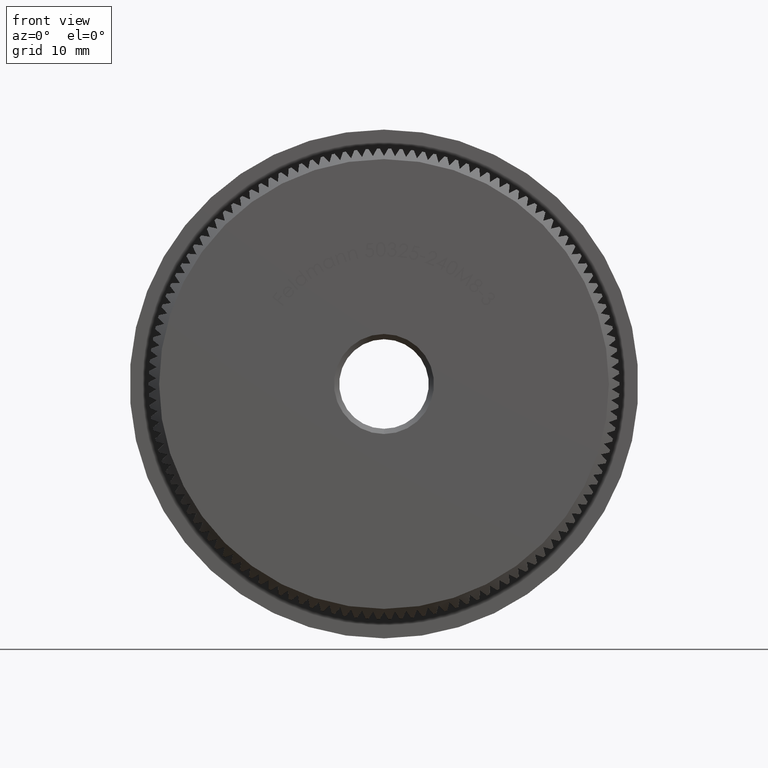
[diagram: clean part render]
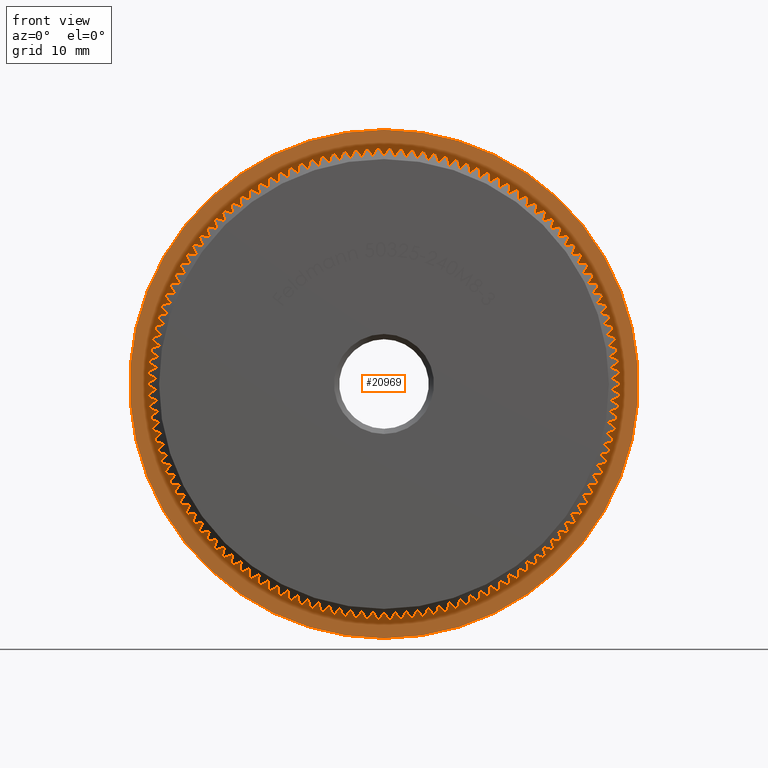
[diagram: same view with one face highlighted and labeled with its STEP entity id]
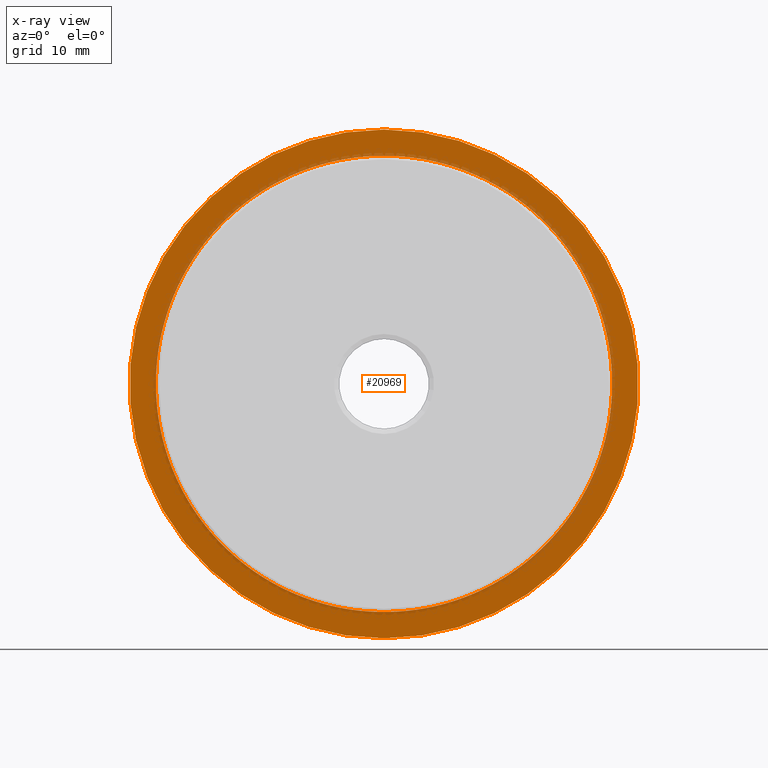
[diagram: x-ray of the same camera — body ghosted, the highlighted face saturated]
A machine part, front view. The second image highlights one B-rep face of the part: STEP entity #20969.
The next image is the same camera in x-ray: the body ghosted, the highlighted face saturated — about 9% of this face is hidden behind the body in this view.
In plain terms, the highlighted planar face has unit normal (0, -1, -0).
Its self-contained STEP definition (entity closure, byte-faithful):
#46 = EDGE_CURVE ( 'NONE', #8268, #32572, #27746, .T. ) ;
#66 = DIRECTION ( 'NONE',  ( 0.0000000000000000000, 0.0000000000000000000, -1.000000000000000000 ) ) ;
#90 = DIRECTION ( 'NONE',  ( 0.0000000000000000000, 0.0000000000000000000, -1.000000000000000000 ) ) ;
#135 = VERTEX_POINT ( 'NONE', #14126 ) ;
#167 = CARTESIAN_POINT ( 'NONE',  ( 0.0000000000000000000, 8.000000000000001800, 0.0000000000000000000 ) ) ;
#192 = ORIENTED_EDGE ( 'NONE', *, *, #9993, .F. ) ;
#253 = ORIENTED_EDGE ( 'NONE', *, *, #7801, .F. ) ;
#259 = PLANE ( 'NONE',  #19932 ) ;
#391 = EDGE_CURVE ( 'NONE', #7436, #8202, #30123, .T. ) ;
#427 = VERTEX_POINT ( 'NONE', #1244 ) ;
#458 = DIRECTION ( 'NONE',  ( -0.0000000000000000000, -1.000000000000000000, -0.0000000000000000000 ) ) ;
#460 = VERTEX_POINT ( 'NONE', #23740 ) ;
#467 = ORIENTED_EDGE ( 'NONE', *, *, #26330, .F. ) ;
#521 = EDGE_CURVE ( 'NONE', #12297, #5889, #9587, .T. ) ;
#536 = ORIENTED_EDGE ( 'NONE', *, *, #28768, .F. ) ;
#578 = EDGE_CURVE ( 'NONE', #2650, #13173, #31288, .T. ) ;
#590 = DIRECTION ( 'NONE',  ( -0.0000000000000000000, -1.000000000000000000, -0.0000000000000000000 ) ) ;
#607 = CIRCLE ( 'NONE', #30057, 21.65000000000000200 ) ;
#640 = CIRCLE ( 'NONE', #8226, 21.65000000000000200 ) ;
#685 = DIRECTION ( 'NONE',  ( 0.0000000000000000000, 0.0000000000000000000, -1.000000000000000000 ) ) ;
#716 = EDGE_CURVE ( 'NONE', #32156, #22023, #6068, .T. ) ;
#770 = EDGE_CURVE ( 'NONE', #11981, #9844, #24564, .T. ) ;
#771 = AXIS2_PLACEMENT_3D ( 'NONE', #17530, #14880, #12142 ) ;
#790 = DIRECTION ( 'NONE',  ( -0.0000000000000000000, -1.000000000000000000, -0.0000000000000000000 ) ) ;
#810 = EDGE_CURVE ( 'NONE', #1350, #30709, #5648, .T. ) ;
#821 = VERTEX_POINT ( 'NONE', #28777 ) ;
#835 = CARTESIAN_POINT ( 'NONE',  ( -19.84855102860397100, 8.000000000000000000, -8.646243234197397600 ) ) ;
#838 = VERTEX_POINT ( 'NONE', #11241 ) ;
#856 = AXIS2_PLACEMENT_3D ( 'NONE', #30265, #7581, #66 ) ;
#914 = CARTESIAN_POINT ( 'NONE',  ( 0.0000000000000000000, 8.000000000000001800, 0.0000000000000000000 ) ) ;
#958 = DIRECTION ( 'NONE',  ( 0.0000000000000000000, 0.0000000000000000000, -1.000000000000000000 ) ) ;
#1097 = EDGE_CURVE ( 'NONE', #2393, #3956, #15060, .T. ) ;
#1104 = CARTESIAN_POINT ( 'NONE',  ( 0.0000000000000000000, 8.000000000000001800, 0.0000000000000000000 ) ) ;
#1128 = CARTESIAN_POINT ( 'NONE',  ( 21.34096965217020500, 7.999999999999996400, 3.644929945163618800 ) ) ;
#1142 = EDGE_CURVE ( 'NONE', #26156, #25463, #17825, .T. ) ;
#1148 = EDGE_CURVE ( 'NONE', #2141, #2766, #19810, .T. ) ;
#1151 = CARTESIAN_POINT ( 'NONE',  ( 0.0000000000000000000, 8.000000000000001800, 0.0000000000000000000 ) ) ;
#1165 = VERTEX_POINT ( 'NONE', #16577 ) ;
#1209 = DIRECTION ( 'NONE',  ( 0.0000000000000000000, 0.0000000000000000000, -1.000000000000000000 ) ) ;
#1220 = ORIENTED_EDGE ( 'NONE', *, *, #11467, .T. ) ;
#1244 = CARTESIAN_POINT ( 'NONE',  ( 14.35660555091335600, 7.999999999999996400, -16.20525769790421900 ) ) ;
#1266 = DIRECTION ( 'NONE',  ( -0.0000000000000000000, -1.000000000000000000, -0.0000000000000000000 ) ) ;
#1277 = DIRECTION ( 'NONE',  ( -0.0000000000000000000, -1.000000000000000000, -0.0000000000000000000 ) ) ;
#1294 = CARTESIAN_POINT ( 'NONE',  ( 17.20260676580289400, 8.000000000000000000, -13.14506829427494900 ) ) ;
#1333 = VERTEX_POINT ( 'NONE', #6202 ) ;
#1334 = CIRCLE ( 'NONE', #22205, 21.65000000000000200 ) ;
#1344 = DIRECTION ( 'NONE',  ( 0.0000000000000000000, 0.0000000000000000000, -1.000000000000000000 ) ) ;
#1350 = VERTEX_POINT ( 'NONE', #13725 ) ;
#1424 = AXIS2_PLACEMENT_3D ( 'NONE', #9336, #26972, #11534 ) ;
#1425 = ORIENTED_EDGE ( 'NONE', *, *, #31806, .F. ) ;
#1432 = DIRECTION ( 'NONE',  ( 0.0000000000000000000, 0.0000000000000000000, -1.000000000000000000 ) ) ;
#1456 = VERTEX_POINT ( 'NONE', #11988 ) ;
#1525 = DIRECTION ( 'NONE',  ( -0.0000000000000000000, -1.000000000000000000, -0.0000000000000000000 ) ) ;
#1529 = VERTEX_POINT ( 'NONE', #1867 ) ;
#1539 = CARTESIAN_POINT ( 'NONE',  ( -14.35660555091313000, 7.999999999999996400, -16.20525769790441800 ) ) ;
#1546 = VERTEX_POINT ( 'NONE', #2412 ) ;
#1571 = DIRECTION ( 'NONE',  ( 0.0000000000000000000, 0.0000000000000000000, -1.000000000000000000 ) ) ;
#1610 = CARTESIAN_POINT ( 'NONE',  ( 2.957522019940857900E-015, 8.000000000000000000, 24.14999999999999900 ) ) ;
#1622 = ORIENTED_EDGE ( 'NONE', *, *, #810, .F. ) ;
#1639 = CIRCLE ( 'NONE', #7010, 21.65000000000000200 ) ;
#1720 = ORIENTED_EDGE ( 'NONE', *, *, #31130, .F. ) ;
#1754 = VERTEX_POINT ( 'NONE', #28086 ) ;
#1755 = CARTESIAN_POINT ( 'NONE',  ( -9.123333983275275100, 8.000000000000000000, 19.63382991241430300 ) ) ;
#1792 = CARTESIAN_POINT ( 'NONE',  ( 0.0000000000000000000, 8.000000000000001800, 0.0000000000000000000 ) ) ;
#1819 = EDGE_CURVE ( 'NONE', #23828, #19592, #10055, .T. ) ;
#1867 = CARTESIAN_POINT ( 'NONE',  ( 21.49214712422290000, 7.999999999999996400, -2.609619127527526200 ) ) ;
#1884 = ORIENTED_EDGE ( 'NONE', *, *, #1097, .F. ) ;
#1953 = CARTESIAN_POINT ( 'NONE',  ( 20.59037357779014200, 8.000000000000000000, -6.690217928217414600 ) ) ;
#1967 = CARTESIAN_POINT ( 'NONE',  ( 0.0000000000000000000, 8.000000000000001800, 0.0000000000000000000 ) ) ;
#2000 = VERTEX_POINT ( 'NONE', #6479 ) ;
#2010 = VERTEX_POINT ( 'NONE', #7135 ) ;
#2048 = CIRCLE ( 'NONE', #4879, 21.65000000000000200 ) ;
#2066 = AXIS2_PLACEMENT_3D ( 'NONE', #7980, #2872, #18079 ) ;
#2072 = CIRCLE ( 'NONE', #17176, 21.65000000000000200 ) ;
#2120 = DIRECTION ( 'NONE',  ( 0.0000000000000000000, 0.0000000000000000000, -1.000000000000000000 ) ) ;
#2130 = CARTESIAN_POINT ( 'NONE',  ( 0.0000000000000000000, 8.000000000000001800, 0.0000000000000000000 ) ) ;
#2141 = VERTEX_POINT ( 'NONE', #11190 ) ;
#2150 = CIRCLE ( 'NONE', #5160, 21.65000000000000200 ) ;
#2154 = CARTESIAN_POINT ( 'NONE',  ( 0.0000000000000000000, 8.000000000000001800, 0.0000000000000000000 ) ) ;
#2157 = AXIS2_PLACEMENT_3D ( 'NONE', #20694, #8148, #13362 ) ;
#2170 = CIRCLE ( 'NONE', #28851, 21.65000000000000200 ) ;
#2171 = ORIENTED_EDGE ( 'NONE', *, *, #3550, .F. ) ;
#2207 = VERTEX_POINT ( 'NONE', #8784 ) ;
#2210 = EDGE_CURVE ( 'NONE', #18868, #30033, #21505, .T. ) ;
#2241 = DIRECTION ( 'NONE',  ( 0.0000000000000000000, 0.0000000000000000000, -1.000000000000000000 ) ) ;
#2251 = CARTESIAN_POINT ( 'NONE',  ( 0.0000000000000000000, 8.000000000000001800, 0.0000000000000000000 ) ) ;
#2277 = ORIENTED_EDGE ( 'NONE', *, *, #8272, .F. ) ;
#2346 = AXIS2_PLACEMENT_3D ( 'NONE', #2251, #19562, #27052 ) ;
#2350 = AXIS2_PLACEMENT_3D ( 'NONE', #26324, #16167, #31731 ) ;
#2384 = VERTEX_POINT ( 'NONE', #10083 ) ;
#2393 = VERTEX_POINT ( 'NONE', #19789 ) ;
#2405 = CARTESIAN_POINT ( 'NONE',  ( -11.86447078422850200, 7.999999999999992900, -18.10957848792148200 ) ) ;
#2412 = CARTESIAN_POINT ( 'NONE',  ( 10.06125667474734800, 7.999999999999996400, 19.17012295539212400 ) ) ;
#2453 = CIRCLE ( 'NONE', #19967, 21.65000000000000200 ) ;
#2480 = CARTESIAN_POINT ( 'NONE',  ( 11.86447078422875400, 7.999999999999996400, -18.10957848792131500 ) ) ;
#2489 = CIRCLE ( 'NONE', #5270, 21.65000000000000200 ) ;
#2525 = CIRCLE ( 'NONE', #2157, 21.65000000000000200 ) ;
#2543 = AXIS2_PLACEMENT_3D ( 'NONE', #21247, #1277, #958 ) ;
#2555 = VERTEX_POINT ( 'NONE', #30898 ) ;
#2586 = ORIENTED_EDGE ( 'NONE', *, *, #30740, .F. ) ;
#2650 = VERTEX_POINT ( 'NONE', #20986 ) ;
#2682 = DIRECTION ( 'NONE',  ( -0.0000000000000000000, -1.000000000000000000, -0.0000000000000000000 ) ) ;
#2685 = AXIS2_PLACEMENT_3D ( 'NONE', #27907, #12773, #30446 ) ;
#2696 = AXIS2_PLACEMENT_3D ( 'NONE', #6864, #14284, #6750 ) ;
#2720 = CARTESIAN_POINT ( 'NONE',  ( 0.0000000000000000000, 8.000000000000001800, 0.0000000000000000000 ) ) ;
#2766 = VERTEX_POINT ( 'NONE', #8852 ) ;
#2779 = DIRECTION ( 'NONE',  ( 0.0000000000000000000, 0.0000000000000000000, -1.000000000000000000 ) ) ;
#2790 = ORIENTED_EDGE ( 'NONE', *, *, #5709, .F. ) ;
#2797 = CIRCLE ( 'NONE', #20193, 21.65000000000000200 ) ;
#2799 = CIRCLE ( 'NONE', #12040, 21.65000000000000200 ) ;
#2830 = EDGE_CURVE ( 'NONE', #13173, #7175, #23435, .T. ) ;
#2872 = DIRECTION ( 'NONE',  ( -0.0000000000000000000, -1.000000000000000000, -0.0000000000000000000 ) ) ;
#2889 = CIRCLE ( 'NONE', #10363, 21.65000000000000200 ) ;
#2898 = CIRCLE ( 'NONE', #7282, 21.65000000000000200 ) ;
#2921 = AXIS2_PLACEMENT_3D ( 'NONE', #21499, #16188, #23932 ) ;
#2969 = CARTESIAN_POINT ( 'NONE',  ( 15.12277105763962300, 7.999999999999996400, -15.49271750011009100 ) ) ;
#2986 = DIRECTION ( 'NONE',  ( -0.0000000000000000000, -1.000000000000000000, -0.0000000000000000000 ) ) ;
#3015 = CIRCLE ( 'NONE', #13355, 21.65000000000000200 ) ;
#3048 = AXIS2_PLACEMENT_3D ( 'NONE', #30817, #10642, #5595 ) ;
#3070 = EDGE_CURVE ( 'NONE', #10637, #31763, #7677, .T. ) ;
#3104 = DIRECTION ( 'NONE',  ( -0.0000000000000000000, -1.000000000000000000, -0.0000000000000000000 ) ) ;
#3120 = AXIS2_PLACEMENT_3D ( 'NONE', #29789, #30126, #30008 ) ;
#3148 = DIRECTION ( 'NONE',  ( -0.0000000000000000000, -1.000000000000000000, -0.0000000000000000000 ) ) ;
#3251 = CARTESIAN_POINT ( 'NONE',  ( 0.0000000000000000000, 8.000000000000001800, 0.0000000000000000000 ) ) ;
#3295 = CIRCLE ( 'NONE', #7248, 21.65000000000000200 ) ;
#3312 = EDGE_CURVE ( 'NONE', #1546, #24444, #1334, .T. ) ;
#3352 = EDGE_CURVE ( 'NONE', #460, #20835, #17098, .T. ) ;
#3412 = CARTESIAN_POINT ( 'NONE',  ( 15.12277105763930500, 7.999999999999996400, 15.49271750011040200 ) ) ;
#3474 = DIRECTION ( 'NONE',  ( -0.0000000000000000000, -1.000000000000000000, -0.0000000000000000000 ) ) ;
#3486 = CARTESIAN_POINT ( 'NONE',  ( 0.0000000000000000000, 8.000000000000001800, 0.0000000000000000000 ) ) ;
#3501 = ORIENTED_EDGE ( 'NONE', *, *, #1819, .F. ) ;
#3523 = DIRECTION ( 'NONE',  ( 0.0000000000000000000, 0.0000000000000000000, -1.000000000000000000 ) ) ;
#3533 = VERTEX_POINT ( 'NONE', #7497 ) ;
#3547 = AXIS2_PLACEMENT_3D ( 'NONE', #5761, #18624, #13190 ) ;
#3550 = EDGE_CURVE ( 'NONE', #19333, #16991, #2889, .T. ) ;
#3598 = AXIS2_PLACEMENT_3D ( 'NONE', #12231, #17078, #2120 ) ;
#3601 = EDGE_CURVE ( 'NONE', #5208, #16336, #31331, .T. ) ;
#3616 = CIRCLE ( 'NONE', #28087, 21.65000000000000200 ) ;
#3617 = ORIENTED_EDGE ( 'NONE', *, *, #4329, .F. ) ;
#3627 = CARTESIAN_POINT ( 'NONE',  ( 0.0000000000000000000, 8.000000000000001800, 0.0000000000000000000 ) ) ;
#3683 = CARTESIAN_POINT ( 'NONE',  ( -8.164103322552021400, 7.999999999999986700, -20.05168114993591600 ) ) ;
#3762 = ORIENTED_EDGE ( 'NONE', *, *, #13924, .F. ) ;
#3769 = CIRCLE ( 'NONE', #16746, 21.65000000000000200 ) ;
#3783 = VERTEX_POINT ( 'NONE', #2480 ) ;
#3788 = AXIS2_PLACEMENT_3D ( 'NONE', #31487, #28630, #8376 ) ;
#3797 = VERTEX_POINT ( 'NONE', #7364 ) ;
#3798 = CARTESIAN_POINT ( 'NONE',  ( 4.159543430707946900, 7.999999999999996400, -21.24666323091827300 ) ) ;
#3838 = EDGE_CURVE ( 'NONE', #427, #21456, #24578, .T. ) ;
#3865 = ORIENTED_EDGE ( 'NONE', *, *, #17197, .F. ) ;
#3872 = CIRCLE ( 'NONE', #771, 21.65000000000000200 ) ;
#3888 = DIRECTION ( 'NONE',  ( -0.0000000000000000000, -1.000000000000000000, -0.0000000000000000000 ) ) ;
#3911 = CARTESIAN_POINT ( 'NONE',  ( 0.0000000000000000000, 8.000000000000001800, 0.0000000000000000000 ) ) ;
#3913 = CARTESIAN_POINT ( 'NONE',  ( 0.0000000000000000000, 8.000000000000001800, 0.0000000000000000000 ) ) ;
#3923 = DIRECTION ( 'NONE',  ( -0.0000000000000000000, -1.000000000000000000, -0.0000000000000000000 ) ) ;
#3924 = CIRCLE ( 'NONE', #31507, 21.65000000000000200 ) ;
#3956 = VERTEX_POINT ( 'NONE', #8117 ) ;
#3965 = CARTESIAN_POINT ( 'NONE',  ( 0.0000000000000000000, 8.000000000000001800, 0.0000000000000000000 ) ) ;
#3995 = VERTEX_POINT ( 'NONE', #8544 ) ;
#4001 = CARTESIAN_POINT ( 'NONE',  ( -20.88955572988790600, 8.000000000000000000, 5.687614737999344200 ) ) ;
#4016 = CARTESIAN_POINT ( 'NONE',  ( 17.81760069659751300, 8.000000000000003600, 12.29860176672974100 ) ) ;
#4019 = DIRECTION ( 'NONE',  ( -0.0000000000000000000, -1.000000000000000000, -0.0000000000000000000 ) ) ;
#4081 = EDGE_CURVE ( 'NONE', #3956, #24853, #15533, .T. ) ;
#4103 = DIRECTION ( 'NONE',  ( -0.0000000000000000000, -1.000000000000000000, -0.0000000000000000000 ) ) ;
#4125 = AXIS2_PLACEMENT_3D ( 'NONE', #2130, #14079, #9068 ) ;
#4185 = AXIS2_PLACEMENT_3D ( 'NONE', #19680, #4590, #27278 ) ;
#4200 = CIRCLE ( 'NONE', #22554, 21.65000000000000200 ) ;
#4213 = ORIENTED_EDGE ( 'NONE', *, *, #29682, .F. ) ;
#4239 = CARTESIAN_POINT ( 'NONE',  ( 1.045984666726928800, 8.000000000000000000, 21.62471771091988900 ) ) ;
#4266 = VERTEX_POINT ( 'NONE', #21022 ) ;
#4281 = EDGE_CURVE ( 'NONE', #5810, #12176, #3295, .T. ) ;
#4323 = DIRECTION ( 'NONE',  ( 0.0000000000000000000, 0.0000000000000000000, -1.000000000000000000 ) ) ;
#4329 = EDGE_CURVE ( 'NONE', #4504, #32086, #2525, .T. ) ;
#4337 = AXIS2_PLACEMENT_3D ( 'NONE', #23877, #1266, #16014 ) ;
#4445 = ORIENTED_EDGE ( 'NONE', *, *, #19010, .F. ) ;
#4500 = VERTEX_POINT ( 'NONE', #3798 ) ;
#4504 = VERTEX_POINT ( 'NONE', #3683 ) ;
#4507 = AXIS2_PLACEMENT_3D ( 'NONE', #17080, #16859, #24804 ) ;
#4536 = EDGE_CURVE ( 'NONE', #32572, #21201, #13138, .T. ) ;
#4590 = DIRECTION ( 'NONE',  ( -0.0000000000000000000, -1.000000000000000000, -0.0000000000000000000 ) ) ;
#4599 = VERTEX_POINT ( 'NONE', #31572 ) ;
#4611 = DIRECTION ( 'NONE',  ( 0.0000000000000000000, 0.0000000000000000000, -1.000000000000000000 ) ) ;
#4627 = AXIS2_PLACEMENT_3D ( 'NONE', #16634, #21746, #4323 ) ;
#4681 = VERTEX_POINT ( 'NONE', #4239 ) ;
#4721 = EDGE_CURVE ( 'NONE', #3533, #6988, #27346, .T. ) ;
#4749 = ORIENTED_EDGE ( 'NONE', *, *, #716, .F. ) ;
#4775 = EDGE_CURVE ( 'NONE', #16991, #14909, #20651, .T. ) ;
#4794 = DIRECTION ( 'NONE',  ( -0.0000000000000000000, -1.000000000000000000, -0.0000000000000000000 ) ) ;
#4829 = DIRECTION ( 'NONE',  ( -0.0000000000000000000, -1.000000000000000000, -0.0000000000000000000 ) ) ;
#4835 = EDGE_CURVE ( 'NONE', #22672, #18385, #23034, .T. ) ;
#4867 = VERTEX_POINT ( 'NONE', #30361 ) ;
#4879 = AXIS2_PLACEMENT_3D ( 'NONE', #5934, #26076, #8896 ) ;
#4898 = DIRECTION ( 'NONE',  ( 0.0000000000000000000, 0.0000000000000000000, -1.000000000000000000 ) ) ;
#4909 = CARTESIAN_POINT ( 'NONE',  ( 0.0000000000000000000, 8.000000000000001800, 0.0000000000000000000 ) ) ;
#4931 = EDGE_CURVE ( 'NONE', #2766, #4500, #25743, .T. ) ;
#4949 = ORIENTED_EDGE ( 'NONE', *, *, #1148, .F. ) ;
#4969 = CARTESIAN_POINT ( 'NONE',  ( 0.0000000000000000000, 8.000000000000001800, 0.0000000000000000000 ) ) ;
#4970 = CIRCLE ( 'NONE', #27352, 21.65000000000000200 ) ;
#4985 = CIRCLE ( 'NONE', #11748, 21.65000000000000200 ) ;
#5012 = AXIS2_PLACEMENT_3D ( 'NONE', #29715, #17454, #14685 ) ;
#5033 = DIRECTION ( 'NONE',  ( 0.0000000000000000000, 0.0000000000000000000, -1.000000000000000000 ) ) ;
#5036 = EDGE_CURVE ( 'NONE', #28219, #5208, #24182, .T. ) ;
#5065 = CARTESIAN_POINT ( 'NONE',  ( 0.0000000000000000000, 8.000000000000001800, 0.0000000000000000000 ) ) ;
#5128 = AXIS2_PLACEMENT_3D ( 'NONE', #19710, #24875, #9787 ) ;
#5160 = AXIS2_PLACEMENT_3D ( 'NONE', #20014, #30040, #14666 ) ;
#5189 = VERTEX_POINT ( 'NONE', #19740 ) ;
#5208 = VERTEX_POINT ( 'NONE', #27883 ) ;
#5270 = AXIS2_PLACEMENT_3D ( 'NONE', #9805, #10029, #32624 ) ;
#5296 = CARTESIAN_POINT ( 'NONE',  ( -15.85361663184182900, 7.999999999999989300, 14.74399334273413100 ) ) ;
#5314 = AXIS2_PLACEMENT_3D ( 'NONE', #16458, #29056, #28840 ) ;
#5345 = CARTESIAN_POINT ( 'NONE',  ( 0.0000000000000000000, 8.000000000000001800, 0.0000000000000000000 ) ) ;
#5383 = DIRECTION ( 'NONE',  ( 0.0000000000000000000, 0.0000000000000000000, -1.000000000000000000 ) ) ;
#5396 = AXIS2_PLACEMENT_3D ( 'NONE', #3251, #20689, #18351 ) ;
#5468 = AXIS2_PLACEMENT_3D ( 'NONE', #11213, #6067, #18601 ) ;
#5567 = CARTESIAN_POINT ( 'NONE',  ( 0.0000000000000000000, 8.000000000000001800, 0.0000000000000000000 ) ) ;
#5595 = DIRECTION ( 'NONE',  ( 0.0000000000000000000, 0.0000000000000000000, -1.000000000000000000 ) ) ;
#5603 = CIRCLE ( 'NONE', #16227, 21.65000000000000200 ) ;
#5615 = CARTESIAN_POINT ( 'NONE',  ( 0.0000000000000000000, 8.000000000000001800, 0.0000000000000000000 ) ) ;
#5641 = CARTESIAN_POINT ( 'NONE',  ( -18.92140790636414100, 7.999999999999996400, 10.52154089670238000 ) ) ;
#5645 = DIRECTION ( 'NONE',  ( 0.0000000000000000000, 0.0000000000000000000, -1.000000000000000000 ) ) ;
#5648 = CIRCLE ( 'NONE', #2921, 21.65000000000000200 ) ;
#5696 = VERTEX_POINT ( 'NONE', #5890 ) ;
#5709 = EDGE_CURVE ( 'NONE', #8471, #2000, #24554, .T. ) ;
#5728 = CARTESIAN_POINT ( 'NONE',  ( -20.88955572988787400, 7.999999999999986700, -5.687614737999492600 ) ) ;
#5730 = CIRCLE ( 'NONE', #23360, 21.65000000000000200 ) ;
#5737 = CARTESIAN_POINT ( 'NONE',  ( 0.0000000000000000000, 8.000000000000001800, 0.0000000000000000000 ) ) ;
#5761 = CARTESIAN_POINT ( 'NONE',  ( 0.0000000000000000000, 8.000000000000001800, 0.0000000000000000000 ) ) ;
#5808 = CIRCLE ( 'NONE', #3547, 21.65000000000000200 ) ;
#5810 = VERTEX_POINT ( 'NONE', #23951 ) ;
#5820 = CARTESIAN_POINT ( 'NONE',  ( -17.81760069659760500, 7.999999999999996400, -12.29860176672960900 ) ) ;
#5866 = ORIENTED_EDGE ( 'NONE', *, *, #17689, .F. ) ;
#5880 = CARTESIAN_POINT ( 'NONE',  ( 0.0000000000000000000, 8.000000000000001800, 0.0000000000000000000 ) ) ;
#5889 = VERTEX_POINT ( 'NONE', #26564 ) ;
#5890 = CARTESIAN_POINT ( 'NONE',  ( -7.185805020232655800, 8.000000000000000000, 20.42270075703013500 ) ) ;
#5929 = CARTESIAN_POINT ( 'NONE',  ( 0.0000000000000000000, 8.000000000000001800, 0.0000000000000000000 ) ) ;
#5934 = CARTESIAN_POINT ( 'NONE',  ( 0.0000000000000000000, 8.000000000000001800, 0.0000000000000000000 ) ) ;
#5940 = DIRECTION ( 'NONE',  ( 0.0000000000000000000, 0.0000000000000000000, -1.000000000000000000 ) ) ;
#5954 = CIRCLE ( 'NONE', #8373, 21.65000000000000200 ) ;
#5983 = CARTESIAN_POINT ( 'NONE',  ( 0.0000000000000000000, 8.000000000000001800, 0.0000000000000000000 ) ) ;
#5985 = CARTESIAN_POINT ( 'NONE',  ( 0.0000000000000000000, 8.000000000000001800, 0.0000000000000000000 ) ) ;
#6002 = ORIENTED_EDGE ( 'NONE', *, *, #24739, .F. ) ;
#6025 = DIRECTION ( 'NONE',  ( -0.0000000000000000000, -1.000000000000000000, -0.0000000000000000000 ) ) ;
#6067 = DIRECTION ( 'NONE',  ( -0.0000000000000000000, -1.000000000000000000, -0.0000000000000000000 ) ) ;
#6068 = CIRCLE ( 'NONE', #18768, 21.65000000000000200 ) ;
#6175 = CARTESIAN_POINT ( 'NONE',  ( 0.0000000000000000000, 8.000000000000001800, 0.0000000000000000000 ) ) ;
#6202 = CARTESIAN_POINT ( 'NONE',  ( 18.39098079538079500, 8.000000000000000000, 11.42341128489799700 ) ) ;
#6210 = ORIENTED_EDGE ( 'NONE', *, *, #22612, .F. ) ;
#6220 = CIRCLE ( 'NONE', #4125, 21.65000000000000200 ) ;
#6229 = DIRECTION ( 'NONE',  ( -0.0000000000000000000, -1.000000000000000000, -0.0000000000000000000 ) ) ;
#6358 = VERTEX_POINT ( 'NONE', #20148 ) ;
#6372 = DIRECTION ( 'NONE',  ( -0.0000000000000000000, -1.000000000000000000, -0.0000000000000000000 ) ) ;
#6380 = VERTEX_POINT ( 'NONE', #25409 ) ;
#6381 = DIRECTION ( 'NONE',  ( 0.0000000000000000000, 0.0000000000000000000, -1.000000000000000000 ) ) ;
#6445 = CIRCLE ( 'NONE', #3048, 21.65000000000000200 ) ;
#6479 = CARTESIAN_POINT ( 'NONE',  ( 21.13994935665369100, 8.000000000000000000, 4.671727860023238100 ) ) ;
#6480 = CARTESIAN_POINT ( 'NONE',  ( 0.0000000000000000000, 8.000000000000001800, 0.0000000000000000000 ) ) ;
#6495 = CIRCLE ( 'NONE', #9579, 21.65000000000000200 ) ;
#6535 = DIRECTION ( 'NONE',  ( -0.0000000000000000000, -1.000000000000000000, -0.0000000000000000000 ) ) ;
#6561 = EDGE_CURVE ( 'NONE', #23398, #25145, #25316, .T. ) ;
#6574 = EDGE_CURVE ( 'NONE', #29878, #17555, #11116, .T. ) ;
#6599 = DIRECTION ( 'NONE',  ( 0.0000000000000000000, 0.0000000000000000000, -1.000000000000000000 ) ) ;
#6664 = CARTESIAN_POINT ( 'NONE',  ( -21.59312869082078000, 8.000000000000003600, -1.568213423502235100 ) ) ;
#6697 = AXIS2_PLACEMENT_3D ( 'NONE', #7378, #22582, #9669 ) ;
#6706 = VERTEX_POINT ( 'NONE', #26011 ) ;
#6735 = VERTEX_POINT ( 'NONE', #18517 ) ;
#6750 = DIRECTION ( 'NONE',  ( 0.0000000000000000000, 0.0000000000000000000, -1.000000000000000000 ) ) ;
#6864 = CARTESIAN_POINT ( 'NONE',  ( 0.0000000000000000000, 8.000000000000000000, 0.0000000000000000000 ) ) ;
#6870 = CARTESIAN_POINT ( 'NONE',  ( 0.0000000000000000000, 8.000000000000001800, 0.0000000000000000000 ) ) ;
#6886 = DIRECTION ( 'NONE',  ( -0.0000000000000000000, -1.000000000000000000, -0.0000000000000000000 ) ) ;
#6891 = CARTESIAN_POINT ( 'NONE',  ( 0.0000000000000000000, 8.000000000000001800, 0.0000000000000000000 ) ) ;
#6896 = ORIENTED_EDGE ( 'NONE', *, *, #4536, .F. ) ;
#6903 = CIRCLE ( 'NONE', #18512, 21.65000000000000200 ) ;
#6988 = VERTEX_POINT ( 'NONE', #32001 ) ;
#6998 = ORIENTED_EDGE ( 'NONE', *, *, #27658, .F. ) ;
#7002 = ORIENTED_EDGE ( 'NONE', *, *, #22986, .F. ) ;
#7010 = AXIS2_PLACEMENT_3D ( 'NONE', #23382, #8511, #25881 ) ;
#7069 = CIRCLE ( 'NONE', #25042, 21.65000000000000200 ) ;
#7126 = DIRECTION ( 'NONE',  ( -0.0000000000000000000, -1.000000000000000000, -0.0000000000000000000 ) ) ;
#7135 = CARTESIAN_POINT ( 'NONE',  ( 20.88955572988794500, 8.000000000000003600, -5.687614737999203900 ) ) ;
#7137 = DIRECTION ( 'NONE',  ( 0.0000000000000000000, 0.0000000000000000000, -1.000000000000000000 ) ) ;
#7175 = VERTEX_POINT ( 'NONE', #1953 ) ;
#7248 = AXIS2_PLACEMENT_3D ( 'NONE', #5929, #3148, #23453 ) ;
#7282 = AXIS2_PLACEMENT_3D ( 'NONE', #5737, #10462, #20825 ) ;
#7317 = DIRECTION ( 'NONE',  ( -0.0000000000000000000, -1.000000000000000000, -0.0000000000000000000 ) ) ;
#7323 = DIRECTION ( 'NONE',  ( -0.0000000000000000000, -1.000000000000000000, -0.0000000000000000000 ) ) ;
#7364 = CARTESIAN_POINT ( 'NONE',  ( 21.59312869082079800, 8.000000000000003600, -1.568213423501933600 ) ) ;
#7378 = CARTESIAN_POINT ( 'NONE',  ( 0.0000000000000000000, 8.000000000000001800, 0.0000000000000000000 ) ) ;
#7404 = AXIS2_PLACEMENT_3D ( 'NONE', #13277, #30951, #20927 ) ;
#7436 = VERTEX_POINT ( 'NONE', #8278 ) ;
#7497 = CARTESIAN_POINT ( 'NONE',  ( -10.97568083506425500, 8.000000000000000000, 18.66164328795305500 ) ) ;
#7581 = DIRECTION ( 'NONE',  ( -0.0000000000000000000, -1.000000000000000000, -0.0000000000000000000 ) ) ;
#7591 = CIRCLE ( 'NONE', #15837, 21.65000000000000200 ) ;
#7613 = ORIENTED_EDGE ( 'NONE', *, *, #31895, .F. ) ;
#7672 = DIRECTION ( 'NONE',  ( 0.0000000000000000000, 0.0000000000000000000, -1.000000000000000000 ) ) ;
#7677 = CIRCLE ( 'NONE', #17732, 21.65000000000000200 ) ;
#7698 = AXIS2_PLACEMENT_3D ( 'NONE', #5345, #590, #18097 ) ;
#7748 = AXIS2_PLACEMENT_3D ( 'NONE', #3627, #31518, #1209 ) ;
#7799 = EDGE_CURVE ( 'NONE', #31532, #16713, #29628, .T. ) ;
#7801 = EDGE_CURVE ( 'NONE', #4599, #427, #2797, .T. ) ;
#7823 = CARTESIAN_POINT ( 'NONE',  ( 0.0000000000000000000, 8.000000000000001800, 0.0000000000000000000 ) ) ;
#7875 = CARTESIAN_POINT ( 'NONE',  ( 18.39098079538103300, 8.000000000000003600, -11.42341128489761100 ) ) ;
#7953 = CIRCLE ( 'NONE', #22087, 21.65000000000000200 ) ;
#7966 = CARTESIAN_POINT ( 'NONE',  ( -1.045984666727230800, 7.999999999999989300, 21.62471771091987800 ) ) ;
#7980 = CARTESIAN_POINT ( 'NONE',  ( 0.0000000000000000000, 8.000000000000001800, 0.0000000000000000000 ) ) ;
#8023 = VERTEX_POINT ( 'NONE', #31248 ) ;
#8070 = ORIENTED_EDGE ( 'NONE', *, *, #11797, .F. ) ;
#8076 = AXIS2_PLACEMENT_3D ( 'NONE', #14938, #12302, #27757 ) ;
#8082 = CIRCLE ( 'NONE', #1424, 21.65000000000000200 ) ;
#8092 = ORIENTED_EDGE ( 'NONE', *, *, #12091, .F. ) ;
#8109 = DIRECTION ( 'NONE',  ( 0.0000000000000000000, 0.0000000000000000000, -1.000000000000000000 ) ) ;
#8117 = CARTESIAN_POINT ( 'NONE',  ( -5.181184131825637500, 8.000000000000000000, 21.02089034727402600 ) ) ;
#8148 = DIRECTION ( 'NONE',  ( -0.0000000000000000000, -1.000000000000000000, -0.0000000000000000000 ) ) ;
#8202 = VERTEX_POINT ( 'NONE', #30137 ) ;
#8226 = AXIS2_PLACEMENT_3D ( 'NONE', #9365, #12198, #19400 ) ;
#8257 = ORIENTED_EDGE ( 'NONE', *, *, #29827, .F. ) ;
#8260 = CIRCLE ( 'NONE', #14815, 21.65000000000000200 ) ;
#8268 = VERTEX_POINT ( 'NONE', #14649 ) ;
#8272 = EDGE_CURVE ( 'NONE', #17125, #838, #5954, .T. ) ;
#8278 = CARTESIAN_POINT ( 'NONE',  ( -17.20260676580280900, 7.999999999999996400, 13.14506829427506500 ) ) ;
#8369 = CIRCLE ( 'NONE', #9112, 21.65000000000000200 ) ;
#8373 = AXIS2_PLACEMENT_3D ( 'NONE', #24816, #12145, #2241 ) ;
#8376 = DIRECTION ( 'NONE',  ( 0.0000000000000000000, 0.0000000000000000000, -1.000000000000000000 ) ) ;
#8430 = DIRECTION ( 'NONE',  ( 0.0000000000000000000, 0.0000000000000000000, -1.000000000000000000 ) ) ;
#8454 = ORIENTED_EDGE ( 'NONE', *, *, #18313, .F. ) ;
#8471 = VERTEX_POINT ( 'NONE', #1128 ) ;
#8511 = DIRECTION ( 'NONE',  ( -0.0000000000000000000, -1.000000000000000000, -0.0000000000000000000 ) ) ;
#8544 = CARTESIAN_POINT ( 'NONE',  ( 21.13994935665378700, 8.000000000000000000, -4.671727860022794900 ) ) ;
#8586 = CARTESIAN_POINT ( 'NONE',  ( -21.13994935665372700, 7.999999999999996400, -4.671727860023085400 ) ) ;
#8602 = DIRECTION ( 'NONE',  ( 0.0000000000000000000, 0.0000000000000000000, -1.000000000000000000 ) ) ;
#8648 = CARTESIAN_POINT ( 'NONE',  ( 0.0000000000000000000, 8.000000000000001800, 0.0000000000000000000 ) ) ;
#8652 = DIRECTION ( 'NONE',  ( -0.0000000000000000000, -1.000000000000000000, -0.0000000000000000000 ) ) ;
#8678 = DIRECTION ( 'NONE',  ( 0.0000000000000000000, 0.0000000000000000000, -1.000000000000000000 ) ) ;
#8701 = DIRECTION ( 'NONE',  ( 0.0000000000000000000, 0.0000000000000000000, -1.000000000000000000 ) ) ;
#8784 = CARTESIAN_POINT ( 'NONE',  ( 15.85361663184193000, 7.999999999999996400, -14.74399334273402000 ) ) ;
#8789 = EDGE_CURVE ( 'NONE', #16423, #1350, #29177, .T. ) ;
#8852 = CARTESIAN_POINT ( 'NONE',  ( 3.128187923173800600, 7.999999999999986700, -21.42281354811524000 ) ) ;
#8896 = DIRECTION ( 'NONE',  ( 0.0000000000000000000, 0.0000000000000000000, -1.000000000000000000 ) ) ;
#8910 = CARTESIAN_POINT ( 'NONE',  ( 0.0000000000000000000, 8.000000000000001800, 0.0000000000000000000 ) ) ;
#8940 = CARTESIAN_POINT ( 'NONE',  ( 0.0000000000000000000, 8.000000000000001800, 0.0000000000000000000 ) ) ;
#8957 = CARTESIAN_POINT ( 'NONE',  ( 0.0000000000000000000, 8.000000000000001800, 0.0000000000000000000 ) ) ;
#8961 = DIRECTION ( 'NONE',  ( 0.0000000000000000000, 0.0000000000000000000, -1.000000000000000000 ) ) ;
#9008 = DIRECTION ( 'NONE',  ( -0.0000000000000000000, -1.000000000000000000, -0.0000000000000000000 ) ) ;
#9022 = AXIS2_PLACEMENT_3D ( 'NONE', #19031, #11309, #21573 ) ;
#9053 = DIRECTION ( 'NONE',  ( -0.0000000000000000000, -1.000000000000000000, -0.0000000000000000000 ) ) ;
#9065 = DIRECTION ( 'NONE',  ( -0.0000000000000000000, -1.000000000000000000, -0.0000000000000000000 ) ) ;
#9066 = ORIENTED_EDGE ( 'NONE', *, *, #9834, .F. ) ;
#9068 = DIRECTION ( 'NONE',  ( 0.0000000000000000000, 0.0000000000000000000, -1.000000000000000000 ) ) ;
#9112 = AXIS2_PLACEMENT_3D ( 'NONE', #1104, #26655, #13719 ) ;
#9116 = CARTESIAN_POINT ( 'NONE',  ( 0.0000000000000000000, 8.000000000000001800, 0.0000000000000000000 ) ) ;
#9145 = VERTEX_POINT ( 'NONE', #13108 ) ;
#9198 = CARTESIAN_POINT ( 'NONE',  ( 0.0000000000000000000, 8.000000000000001800, 0.0000000000000000000 ) ) ;
#9248 = VERTEX_POINT ( 'NONE', #25911 ) ;
#9253 = EDGE_CURVE ( 'NONE', #20835, #20446, #30736, .T. ) ;
#9327 = VERTEX_POINT ( 'NONE', #23944 ) ;
#9336 = CARTESIAN_POINT ( 'NONE',  ( 0.0000000000000000000, 8.000000000000001800, 0.0000000000000000000 ) ) ;
#9365 = CARTESIAN_POINT ( 'NONE',  ( 0.0000000000000000000, 8.000000000000001800, 0.0000000000000000000 ) ) ;
#9405 = EDGE_CURVE ( 'NONE', #31599, #21979, #24031, .T. ) ;
#9411 = FACE_BOUND ( 'NONE', #20463, .T. ) ;
#9457 = VERTEX_POINT ( 'NONE', #14398 ) ;
#9471 = DIRECTION ( 'NONE',  ( -0.0000000000000000000, -1.000000000000000000, -0.0000000000000000000 ) ) ;
#9494 = ORIENTED_EDGE ( 'NONE', *, *, #11182, .F. ) ;
#9496 = EDGE_CURVE ( 'NONE', #9327, #13912, #26773, .T. ) ;
#9523 = DIRECTION ( 'NONE',  ( -0.0000000000000000000, -1.000000000000000000, -0.0000000000000000000 ) ) ;
#9577 = CIRCLE ( 'NONE', #5468, 21.65000000000000200 ) ;
#9579 = AXIS2_PLACEMENT_3D ( 'NONE', #5567, #23419, #20767 ) ;
#9587 = CIRCLE ( 'NONE', #4627, 21.65000000000000200 ) ;
#9654 = DIRECTION ( 'NONE',  ( -0.0000000000000000000, -1.000000000000000000, -0.0000000000000000000 ) ) ;
#9669 = DIRECTION ( 'NONE',  ( 0.0000000000000000000, 0.0000000000000000000, -1.000000000000000000 ) ) ;
#9687 = CARTESIAN_POINT ( 'NONE',  ( -10.06125667474747400, 7.999999999999996400, -19.17012295539206000 ) ) ;
#9787 = DIRECTION ( 'NONE',  ( 0.0000000000000000000, 0.0000000000000000000, -1.000000000000000000 ) ) ;
#9805 = CARTESIAN_POINT ( 'NONE',  ( 0.0000000000000000000, 8.000000000000001800, 0.0000000000000000000 ) ) ;
#9834 = EDGE_CURVE ( 'NONE', #25753, #4867, #7069, .T. ) ;
#9844 = VERTEX_POINT ( 'NONE', #26266 ) ;
#9877 = DIRECTION ( 'NONE',  ( 0.0000000000000000000, 0.0000000000000000000, -1.000000000000000000 ) ) ;
#9879 = AXIS2_PLACEMENT_3D ( 'NONE', #5880, #790, #18405 ) ;
#9886 = AXIS2_PLACEMENT_3D ( 'NONE', #10660, #13155, #30628 ) ;
#9895 = ORIENTED_EDGE ( 'NONE', *, *, #2210, .F. ) ;
#9993 = EDGE_CURVE ( 'NONE', #6380, #28667, #3872, .T. ) ;
#10007 = DIRECTION ( 'NONE',  ( -0.0000000000000000000, -1.000000000000000000, -0.0000000000000000000 ) ) ;
#10029 = DIRECTION ( 'NONE',  ( -0.0000000000000000000, -1.000000000000000000, -0.0000000000000000000 ) ) ;
#10042 = DIRECTION ( 'NONE',  ( -0.0000000000000000000, -1.000000000000000000, -0.0000000000000000000 ) ) ;
#10055 = CIRCLE ( 'NONE', #3788, 21.65000000000000200 ) ;
#10073 = CARTESIAN_POINT ( 'NONE',  ( 0.0000000000000000000, 8.000000000000001800, 0.0000000000000000000 ) ) ;
#10083 = CARTESIAN_POINT ( 'NONE',  ( -20.59037357779010000, 7.999999999999989300, 6.690217928217555800 ) ) ;
#10091 = AXIS2_PLACEMENT_3D ( 'NONE', #17124, #32138, #7137 ) ;
#10106 = ORIENTED_EDGE ( 'NONE', *, *, #11941, .F. ) ;
#10124 = CIRCLE ( 'NONE', #9886, 21.65000000000000200 ) ;
#10130 = AXIS2_PLACEMENT_3D ( 'NONE', #21800, #13802, #16257 ) ;
#10159 = DIRECTION ( 'NONE',  ( 0.0000000000000000000, 0.0000000000000000000, -1.000000000000000000 ) ) ;
#10172 = AXIS2_PLACEMENT_3D ( 'NONE', #21779, #4019, #19120 ) ;
#10218 = DIRECTION ( 'NONE',  ( -0.0000000000000000000, -1.000000000000000000, -0.0000000000000000000 ) ) ;
#10302 = ORIENTED_EDGE ( 'NONE', *, *, #30124, .F. ) ;
#10316 = AXIS2_PLACEMENT_3D ( 'NONE', #5983, #22747, #10159 ) ;
#10351 = CARTESIAN_POINT ( 'NONE',  ( 19.40764319245207800, 7.999999999999996400, -9.595096962223397700 ) ) ;
#10363 = AXIS2_PLACEMENT_3D ( 'NONE', #3913, #3474, #16457 ) ;
#10462 = DIRECTION ( 'NONE',  ( -0.0000000000000000000, -1.000000000000000000, -0.0000000000000000000 ) ) ;
#10478 = DIRECTION ( 'NONE',  ( 0.0000000000000000000, 0.0000000000000000000, -1.000000000000000000 ) ) ;
#10497 = DIRECTION ( 'NONE',  ( -0.0000000000000000000, -1.000000000000000000, -0.0000000000000000000 ) ) ;
#10498 = DIRECTION ( 'NONE',  ( -0.0000000000000000000, -1.000000000000000000, -0.0000000000000000000 ) ) ;
#10511 = DIRECTION ( 'NONE',  ( 0.0000000000000000000, 0.0000000000000000000, -1.000000000000000000 ) ) ;
#10637 = VERTEX_POINT ( 'NONE', #5728 ) ;
#10642 = DIRECTION ( 'NONE',  ( -0.0000000000000000000, -1.000000000000000000, -0.0000000000000000000 ) ) ;
#10660 = CARTESIAN_POINT ( 'NONE',  ( 0.0000000000000000000, 8.000000000000001800, 0.0000000000000000000 ) ) ;
#10751 = EDGE_CURVE ( 'NONE', #30437, #9457, #13678, .T. ) ;
#10789 = AXIS2_PLACEMENT_3D ( 'NONE', #10073, #12687, #2779 ) ;
#10839 = CARTESIAN_POINT ( 'NONE',  ( -18.39098079538095800, 8.000000000000000000, 11.42341128489773500 ) ) ;
#10852 = EDGE_CURVE ( 'NONE', #9457, #28284, #10968, .T. ) ;
#10854 = DIRECTION ( 'NONE',  ( -0.0000000000000000000, -1.000000000000000000, -0.0000000000000000000 ) ) ;
#10856 = CARTESIAN_POINT ( 'NONE',  ( -7.185805020232518100, 8.000000000000000000, -20.42270075703018500 ) ) ;
#10880 = CARTESIAN_POINT ( 'NONE',  ( -20.24310165413925600, 7.999999999999992900, 7.677195804470844800 ) ) ;
#10909 = CIRCLE ( 'NONE', #15572, 21.65000000000000200 ) ;
#10939 = CARTESIAN_POINT ( 'NONE',  ( 0.0000000000000000000, 8.000000000000001800, 0.0000000000000000000 ) ) ;
#10954 = CARTESIAN_POINT ( 'NONE',  ( -17.20260676580272000, 7.999999999999996400, -13.14506829427518400 ) ) ;
#10967 = ORIENTED_EDGE ( 'NONE', *, *, #26974, .F. ) ;
#10968 = CIRCLE ( 'NONE', #10091, 21.65000000000000200 ) ;
#10982 = FACE_OUTER_BOUND ( 'NONE', #30012, .T. ) ;
#11064 = AXIS2_PLACEMENT_3D ( 'NONE', #8648, #16862, #11808 ) ;
#11116 = CIRCLE ( 'NONE', #28193, 21.65000000000000200 ) ;
#11118 = CIRCLE ( 'NONE', #3598, 21.65000000000000200 ) ;
#11172 = AXIS2_PLACEMENT_3D ( 'NONE', #3911, #21345, #23991 ) ;
#11180 = EDGE_CURVE ( 'NONE', #3783, #14817, #21597, .T. ) ;
#11182 = EDGE_CURVE ( 'NONE', #4266, #4504, #29479, .T. ) ;
#11190 = CARTESIAN_POINT ( 'NONE',  ( 2.089526387799408800, 7.999999999999992900, -21.54892989163708000 ) ) ;
#11202 = ORIENTED_EDGE ( 'NONE', *, *, #11801, .F. ) ;
#11213 = CARTESIAN_POINT ( 'NONE',  ( 0.0000000000000000000, 8.000000000000001800, 0.0000000000000000000 ) ) ;
#11241 = CARTESIAN_POINT ( 'NONE',  ( -21.49214712422286100, 8.000000000000000000, -2.609619127527826400 ) ) ;
#11266 = DIRECTION ( 'NONE',  ( 0.0000000000000000000, 0.0000000000000000000, -1.000000000000000000 ) ) ;
#11296 = VERTEX_POINT ( 'NONE', #17647 ) ;
#11309 = DIRECTION ( 'NONE',  ( -0.0000000000000000000, -1.000000000000000000, -0.0000000000000000000 ) ) ;
#11313 = CARTESIAN_POINT ( 'NONE',  ( 0.0000000000000000000, 8.000000000000001800, 0.0000000000000000000 ) ) ;
#11323 = AXIS2_PLACEMENT_3D ( 'NONE', #19744, #32181, #26790 ) ;
#11354 = DIRECTION ( 'NONE',  ( 0.0000000000000000000, 0.0000000000000000000, -1.000000000000000000 ) ) ;
#11417 = DIRECTION ( 'NONE',  ( -0.0000000000000000000, -1.000000000000000000, -0.0000000000000000000 ) ) ;
#11423 = CIRCLE ( 'NONE', #10172, 21.65000000000000200 ) ;
#11439 = AXIS2_PLACEMENT_3D ( 'NONE', #1967, #9471, #24555 ) ;
#11467 = EDGE_CURVE ( 'NONE', #25145, #23398, #23199, .T. ) ;
#11473 = VERTEX_POINT ( 'NONE', #19183 ) ;
#11502 = VERTEX_POINT ( 'NONE', #16829 ) ;
#11507 = CARTESIAN_POINT ( 'NONE',  ( -21.64367850483618100, 7.999999999999986700, -0.5231450843623413100 ) ) ;
#11529 = DIRECTION ( 'NONE',  ( 0.0000000000000000000, 0.0000000000000000000, -1.000000000000000000 ) ) ;
#11534 = DIRECTION ( 'NONE',  ( 0.0000000000000000000, 0.0000000000000000000, -1.000000000000000000 ) ) ;
#11607 = DIRECTION ( 'NONE',  ( 0.0000000000000000000, 0.0000000000000000000, -1.000000000000000000 ) ) ;
#11646 = ORIENTED_EDGE ( 'NONE', *, *, #27984, .F. ) ;
#11648 = CARTESIAN_POINT ( 'NONE',  ( 9.123333983275408300, 8.000000000000003600, -19.63382991241423900 ) ) ;
#11660 = EDGE_CURVE ( 'NONE', #17803, #13290, #29064, .T. ) ;
#11699 = AXIS2_PLACEMENT_3D ( 'NONE', #13868, #31888, #16433 ) ;
#11748 = AXIS2_PLACEMENT_3D ( 'NONE', #6480, #26397, #28741 ) ;
#11797 = EDGE_CURVE ( 'NONE', #25369, #21975, #30650, .T. ) ;
#11801 = EDGE_CURVE ( 'NONE', #13912, #16874, #10909, .T. ) ;
#11808 = DIRECTION ( 'NONE',  ( 0.0000000000000000000, 0.0000000000000000000, -1.000000000000000000 ) ) ;
#11822 = VERTEX_POINT ( 'NONE', #25035 ) ;
#11839 = AXIS2_PLACEMENT_3D ( 'NONE', #23084, #28140, #20756 ) ;
#11858 = CIRCLE ( 'NONE', #5012, 21.65000000000000200 ) ;
#11892 = EDGE_CURVE ( 'NONE', #28667, #2555, #15630, .T. ) ;
#11897 = EDGE_CURVE ( 'NONE', #135, #21853, #13241, .T. ) ;
#11919 = AXIS2_PLACEMENT_3D ( 'NONE', #24283, #4794, #1571 ) ;
#11926 = CARTESIAN_POINT ( 'NONE',  ( 0.0000000000000000000, 8.000000000000001800, 0.0000000000000000000 ) ) ;
#11941 = EDGE_CURVE ( 'NONE', #821, #12297, #20002, .T. ) ;
#11953 = VERTEX_POINT ( 'NONE', #30347 ) ;
#11973 = DIRECTION ( 'NONE',  ( -0.0000000000000000000, -1.000000000000000000, -0.0000000000000000000 ) ) ;
#11981 = VERTEX_POINT ( 'NONE', #7875 ) ;
#11984 = EDGE_CURVE ( 'NONE', #838, #5189, #26298, .T. ) ;
#11988 = CARTESIAN_POINT ( 'NONE',  ( 5.181184131825347100, 7.999999999999996400, 21.02089034727409700 ) ) ;
#12040 = AXIS2_PLACEMENT_3D ( 'NONE', #22854, #20093, #17632 ) ;
#12073 = ORIENTED_EDGE ( 'NONE', *, *, #4721, .F. ) ;
#12091 = EDGE_CURVE ( 'NONE', #11502, #1529, #5808, .T. ) ;
#12093 = DIRECTION ( 'NONE',  ( 0.0000000000000000000, 0.0000000000000000000, -1.000000000000000000 ) ) ;
#12105 = ORIENTED_EDGE ( 'NONE', *, *, #17388, .F. ) ;
#12142 = DIRECTION ( 'NONE',  ( 0.0000000000000000000, 0.0000000000000000000, -1.000000000000000000 ) ) ;
#12145 = DIRECTION ( 'NONE',  ( -0.0000000000000000000, -1.000000000000000000, -0.0000000000000000000 ) ) ;
#12176 = VERTEX_POINT ( 'NONE', #3412 ) ;
#12185 = AXIS2_PLACEMENT_3D ( 'NONE', #19988, #458, #17855 ) ;
#12198 = DIRECTION ( 'NONE',  ( -0.0000000000000000000, -1.000000000000000000, -0.0000000000000000000 ) ) ;
#12231 = CARTESIAN_POINT ( 'NONE',  ( 0.0000000000000000000, 8.000000000000001800, 0.0000000000000000000 ) ) ;
#12241 = VERTEX_POINT ( 'NONE', #24662 ) ;
#12279 = EDGE_CURVE ( 'NONE', #17555, #11981, #640, .T. ) ;
#12297 = VERTEX_POINT ( 'NONE', #1755 ) ;
#12302 = DIRECTION ( 'NONE',  ( -0.0000000000000000000, -1.000000000000000000, -0.0000000000000000000 ) ) ;
#12305 = AXIS2_PLACEMENT_3D ( 'NONE', #6175, #31167, #8701 ) ;
#12315 = CARTESIAN_POINT ( 'NONE',  ( 21.64367850483617400, 7.999999999999992900, 0.5231450843624923000 ) ) ;
#12354 = CARTESIAN_POINT ( 'NONE',  ( 0.0000000000000000000, 8.000000000000001800, 0.0000000000000000000 ) ) ;
#12377 = EDGE_CURVE ( 'NONE', #31265, #15213, #10124, .T. ) ;
#12429 = DIRECTION ( 'NONE',  ( -0.0000000000000000000, -1.000000000000000000, -0.0000000000000000000 ) ) ;
#12461 = DIRECTION ( 'NONE',  ( 0.0000000000000000000, 0.0000000000000000000, -1.000000000000000000 ) ) ;
#12511 = DIRECTION ( 'NONE',  ( 0.0000000000000000000, 0.0000000000000000000, -1.000000000000000000 ) ) ;
#12521 = ORIENTED_EDGE ( 'NONE', *, *, #8789, .F. ) ;
#12549 = AXIS2_PLACEMENT_3D ( 'NONE', #20445, #2682, #8109 ) ;
#12552 = ORIENTED_EDGE ( 'NONE', *, *, #12842, .F. ) ;
#12605 = EDGE_CURVE ( 'NONE', #23409, #9327, #27451, .T. ) ;
#12609 = ORIENTED_EDGE ( 'NONE', *, *, #391, .F. ) ;
#12687 = DIRECTION ( 'NONE',  ( -0.0000000000000000000, -1.000000000000000000, -0.0000000000000000000 ) ) ;
#12748 = ORIENTED_EDGE ( 'NONE', *, *, #10852, .F. ) ;
#12773 = DIRECTION ( 'NONE',  ( -0.0000000000000000000, -1.000000000000000000, -0.0000000000000000000 ) ) ;
#12789 = DIRECTION ( 'NONE',  ( -0.0000000000000000000, -1.000000000000000000, -0.0000000000000000000 ) ) ;
#12816 = CARTESIAN_POINT ( 'NONE',  ( -13.55690952670440000, 7.999999999999996400, -16.87994976546884400 ) ) ;
#12842 = EDGE_CURVE ( 'NONE', #31929, #30036, #25846, .T. ) ;
#12931 = DIRECTION ( 'NONE',  ( -0.0000000000000000000, -1.000000000000000000, -0.0000000000000000000 ) ) ;
#13034 = AXIS2_PLACEMENT_3D ( 'NONE', #28062, #12931, #30607 ) ;
#13064 = CARTESIAN_POINT ( 'NONE',  ( 7.185805020232377800, 7.999999999999983100, 20.42270075703023800 ) ) ;
#13087 = ORIENTED_EDGE ( 'NONE', *, *, #30600, .F. ) ;
#13108 = CARTESIAN_POINT ( 'NONE',  ( 2.089526387798957600, 8.000000000000000000, 21.54892989163712300 ) ) ;
#13116 = CARTESIAN_POINT ( 'NONE',  ( 0.0000000000000000000, 8.000000000000001800, 0.0000000000000000000 ) ) ;
#13138 = CIRCLE ( 'NONE', #14112, 21.65000000000000200 ) ;
#13152 = ORIENTED_EDGE ( 'NONE', *, *, #30122, .F. ) ;
#13155 = DIRECTION ( 'NONE',  ( -0.0000000000000000000, -1.000000000000000000, -0.0000000000000000000 ) ) ;
#13173 = VERTEX_POINT ( 'NONE', #27792 ) ;
#13190 = DIRECTION ( 'NONE',  ( 0.0000000000000000000, 0.0000000000000000000, -1.000000000000000000 ) ) ;
#13241 = CIRCLE ( 'NONE', #2066, 21.65000000000000200 ) ;
#13277 = CARTESIAN_POINT ( 'NONE',  ( 0.0000000000000000000, 8.000000000000001800, 0.0000000000000000000 ) ) ;
#13285 = CIRCLE ( 'NONE', #15884, 21.65000000000000200 ) ;
#13290 = VERTEX_POINT ( 'NONE', #5641 ) ;
#13355 = AXIS2_PLACEMENT_3D ( 'NONE', #13907, #3923, #11529 ) ;
#13362 = DIRECTION ( 'NONE',  ( 0.0000000000000000000, 0.0000000000000000000, -1.000000000000000000 ) ) ;
#13405 = EDGE_CURVE ( 'NONE', #8023, #18868, #21534, .T. ) ;
#13462 = EDGE_CURVE ( 'NONE', #4681, #8023, #14491, .T. ) ;
#13543 = VERTEX_POINT ( 'NONE', #10351 ) ;
#13595 = VERTEX_POINT ( 'NONE', #23793 ) ;
#13605 = EDGE_CURVE ( 'NONE', #2555, #2141, #9577, .T. ) ;
#13678 = CIRCLE ( 'NONE', #9022, 21.65000000000000200 ) ;
#13691 = AXIS2_PLACEMENT_3D ( 'NONE', #24650, #11973, #4611 ) ;
#13719 = DIRECTION ( 'NONE',  ( 0.0000000000000000000, 0.0000000000000000000, -1.000000000000000000 ) ) ;
#13725 = CARTESIAN_POINT ( 'NONE',  ( 13.55690952670429200, 7.999999999999983100, 16.87994976546893600 ) ) ;
#13743 = EDGE_CURVE ( 'NONE', #14817, #4599, #8082, .T. ) ;
#13759 = CARTESIAN_POINT ( 'NONE',  ( 20.88955572988783200, 7.999999999999989300, 5.687614737999642700 ) ) ;
#13762 = AXIS2_PLACEMENT_3D ( 'NONE', #9198, #32226, #16660 ) ;
#13777 = ORIENTED_EDGE ( 'NONE', *, *, #32366, .F. ) ;
#13802 = DIRECTION ( 'NONE',  ( -0.0000000000000000000, -1.000000000000000000, -0.0000000000000000000 ) ) ;
#13868 = CARTESIAN_POINT ( 'NONE',  ( 0.0000000000000000000, 8.000000000000001800, 0.0000000000000000000 ) ) ;
#13907 = CARTESIAN_POINT ( 'NONE',  ( 0.0000000000000000000, 8.000000000000001800, 0.0000000000000000000 ) ) ;
#13910 = DIRECTION ( 'NONE',  ( 0.0000000000000000000, 0.0000000000000000000, -1.000000000000000000 ) ) ;
#13912 = VERTEX_POINT ( 'NONE', #22962 ) ;
#13924 = EDGE_CURVE ( 'NONE', #15213, #1754, #6903, .T. ) ;
#13961 = CARTESIAN_POINT ( 'NONE',  ( 21.49214712422284600, 7.999999999999989300, 2.609619127527977400 ) ) ;
#14027 = EDGE_CURVE ( 'NONE', #1165, #25107, #32489, .T. ) ;
#14040 = ORIENTED_EDGE ( 'NONE', *, *, #9496, .F. ) ;
#14062 = CARTESIAN_POINT ( 'NONE',  ( 0.0000000000000000000, 8.000000000000001800, 0.0000000000000000000 ) ) ;
#14079 = DIRECTION ( 'NONE',  ( -0.0000000000000000000, -1.000000000000000000, -0.0000000000000000000 ) ) ;
#14098 = ORIENTED_EDGE ( 'NONE', *, *, #18032, .F. ) ;
#14112 = AXIS2_PLACEMENT_3D ( 'NONE', #16231, #25951, #28722 ) ;
#14126 = CARTESIAN_POINT ( 'NONE',  ( -18.39098079538088000, 7.999999999999996400, -11.42341128489786000 ) ) ;
#14145 = ORIENTED_EDGE ( 'NONE', *, *, #14027, .F. ) ;
#14200 = DIRECTION ( 'NONE',  ( -0.0000000000000000000, -1.000000000000000000, -0.0000000000000000000 ) ) ;
#14208 = CARTESIAN_POINT ( 'NONE',  ( 0.0000000000000000000, 8.000000000000001800, 0.0000000000000000000 ) ) ;
#14284 = DIRECTION ( 'NONE',  ( -0.0000000000000000000, -1.000000000000000000, -0.0000000000000000000 ) ) ;
#14303 = CIRCLE ( 'NONE', #11064, 21.65000000000000200 ) ;
#14360 = ORIENTED_EDGE ( 'NONE', *, *, #11897, .F. ) ;
#14398 = CARTESIAN_POINT ( 'NONE',  ( 17.20260676580262100, 7.999999999999996400, 13.14506829427531000 ) ) ;
#14404 = AXIS2_PLACEMENT_3D ( 'NONE', #30297, #23016, #90 ) ;
#14415 = VERTEX_POINT ( 'NONE', #11648 ) ;
#14418 = DIRECTION ( 'NONE',  ( -0.0000000000000000000, -1.000000000000000000, -0.0000000000000000000 ) ) ;
#14491 = CIRCLE ( 'NONE', #18954, 21.65000000000000200 ) ;
#14524 = ORIENTED_EDGE ( 'NONE', *, *, #15460, .F. ) ;
#14587 = CIRCLE ( 'NONE', #8076, 21.65000000000000200 ) ;
#14593 = AXIS2_PLACEMENT_3D ( 'NONE', #1792, #14418, #29676 ) ;
#14649 = CARTESIAN_POINT ( 'NONE',  ( -15.85361663184172300, 7.999999999999996400, -14.74399334273424200 ) ) ;
#14665 = EDGE_CURVE ( 'NONE', #13290, #6358, #32085, .T. ) ;
#14666 = DIRECTION ( 'NONE',  ( 0.0000000000000000000, 0.0000000000000000000, -1.000000000000000000 ) ) ;
#14685 = DIRECTION ( 'NONE',  ( 0.0000000000000000000, 0.0000000000000000000, -1.000000000000000000 ) ) ;
#14767 = CARTESIAN_POINT ( 'NONE',  ( -14.35660555091324400, 7.999999999999996400, 16.20525769790431900 ) ) ;
#14781 = ORIENTED_EDGE ( 'NONE', *, *, #28855, .F. ) ;
#14813 = DIRECTION ( 'NONE',  ( -0.0000000000000000000, -1.000000000000000000, -0.0000000000000000000 ) ) ;
#14815 = AXIS2_PLACEMENT_3D ( 'NONE', #14208, #26707, #11607 ) ;
#14817 = VERTEX_POINT ( 'NONE', #31250 ) ;
#14880 = DIRECTION ( 'NONE',  ( -0.0000000000000000000, -1.000000000000000000, -0.0000000000000000000 ) ) ;
#14909 = VERTEX_POINT ( 'NONE', #14767 ) ;
#14938 = CARTESIAN_POINT ( 'NONE',  ( 0.0000000000000000000, 8.000000000000001800, 0.0000000000000000000 ) ) ;
#14973 = CARTESIAN_POINT ( 'NONE',  ( 0.0000000000000000000, 8.000000000000001800, 0.0000000000000000000 ) ) ;
#14982 = ORIENTED_EDGE ( 'NONE', *, *, #18076, .F. ) ;
#14992 = DIRECTION ( 'NONE',  ( 0.0000000000000000000, 0.0000000000000000000, -1.000000000000000000 ) ) ;
#15023 = CARTESIAN_POINT ( 'NONE',  ( 6.190723937331784800, 7.999999999999996400, -20.74602220021340300 ) ) ;
#15042 = CARTESIAN_POINT ( 'NONE',  ( 14.35660555091302500, 7.999999999999996400, 16.20525769790451400 ) ) ;
#15060 = CIRCLE ( 'NONE', #7404, 21.65000000000000200 ) ;
#15155 = CARTESIAN_POINT ( 'NONE',  ( -12.72555071213194600, 7.999999999999996400, -17.51521792821768700 ) ) ;
#15164 = VERTEX_POINT ( 'NONE', #21189 ) ;
#15213 = VERTEX_POINT ( 'NONE', #31430 ) ;
#15239 = ORIENTED_EDGE ( 'NONE', *, *, #31659, .F. ) ;
#15259 = DIRECTION ( 'NONE',  ( -0.0000000000000000000, -1.000000000000000000, -0.0000000000000000000 ) ) ;
#15336 = DIRECTION ( 'NONE',  ( -0.0000000000000000000, -1.000000000000000000, -0.0000000000000000000 ) ) ;
#15337 = ORIENTED_EDGE ( 'NONE', *, *, #46, .F. ) ;
#15365 = AXIS2_PLACEMENT_3D ( 'NONE', #8957, #6229, #11266 ) ;
#15407 = CIRCLE ( 'NONE', #2350, 21.65000000000000200 ) ;
#15460 = EDGE_CURVE ( 'NONE', #11473, #31532, #2489, .T. ) ;
#15482 = ORIENTED_EDGE ( 'NONE', *, *, #30323, .F. ) ;
#15496 = CARTESIAN_POINT ( 'NONE',  ( 3.128187923173351600, 7.999999999999986700, 21.42281354811530400 ) ) ;
#15533 = CIRCLE ( 'NONE', #18812, 21.65000000000000200 ) ;
#15534 = VERTEX_POINT ( 'NONE', #13961 ) ;
#15561 = EDGE_CURVE ( 'NONE', #30036, #28219, #24150, .T. ) ;
#15572 = AXIS2_PLACEMENT_3D ( 'NONE', #30236, #27578, #12461 ) ;
#15630 = CIRCLE ( 'NONE', #12185, 21.65000000000000200 ) ;
#15687 = AXIS2_PLACEMENT_3D ( 'NONE', #8910, #11417, #8602 ) ;
#15700 = AXIS2_PLACEMENT_3D ( 'NONE', #23753, #6025, #28707 ) ;
#15738 = ORIENTED_EDGE ( 'NONE', *, *, #4931, .F. ) ;
#15802 = ORIENTED_EDGE ( 'NONE', *, *, #20715, .F. ) ;
#15827 = ORIENTED_EDGE ( 'NONE', *, *, #12605, .F. ) ;
#15837 = AXIS2_PLACEMENT_3D ( 'NONE', #18946, #28871, #16281 ) ;
#15861 = CIRCLE ( 'NONE', #13762, 21.65000000000000200 ) ;
#15884 = AXIS2_PLACEMENT_3D ( 'NONE', #28181, #15259, #5383 ) ;
#15890 = DIRECTION ( 'NONE',  ( 0.0000000000000000000, 0.0000000000000000000, -1.000000000000000000 ) ) ;
#15914 = CARTESIAN_POINT ( 'NONE',  ( 0.0000000000000000000, 8.000000000000001800, 0.0000000000000000000 ) ) ;
#15935 = AXIS2_PLACEMENT_3D ( 'NONE', #5615, #18253, #25739 ) ;
#16014 = DIRECTION ( 'NONE',  ( 0.0000000000000000000, 0.0000000000000000000, -1.000000000000000000 ) ) ;
#16150 = ORIENTED_EDGE ( 'NONE', *, *, #23990, .F. ) ;
#16167 = DIRECTION ( 'NONE',  ( -0.0000000000000000000, -1.000000000000000000, -0.0000000000000000000 ) ) ;
#16188 = DIRECTION ( 'NONE',  ( -0.0000000000000000000, -1.000000000000000000, -0.0000000000000000000 ) ) ;
#16213 = CARTESIAN_POINT ( 'NONE',  ( -6.190723937331637400, 8.000000000000000000, 20.74602220021344600 ) ) ;
#16227 = AXIS2_PLACEMENT_3D ( 'NONE', #29955, #10218, #20376 ) ;
#16231 = CARTESIAN_POINT ( 'NONE',  ( 0.0000000000000000000, 8.000000000000001800, 0.0000000000000000000 ) ) ;
#16257 = DIRECTION ( 'NONE',  ( 0.0000000000000000000, 0.0000000000000000000, -1.000000000000000000 ) ) ;
#16281 = DIRECTION ( 'NONE',  ( 0.0000000000000000000, 0.0000000000000000000, -1.000000000000000000 ) ) ;
#16334 = EDGE_CURVE ( 'NONE', #5696, #821, #5603, .T. ) ;
#16336 = VERTEX_POINT ( 'NONE', #9687 ) ;
#16351 = CARTESIAN_POINT ( 'NONE',  ( -12.72555071213207100, 7.999999999999989300, 17.51521792821759900 ) ) ;
#16378 = AXIS2_PLACEMENT_3D ( 'NONE', #14062, #9053, #11354 ) ;
#16402 = DIRECTION ( 'NONE',  ( -0.0000000000000000000, -1.000000000000000000, -0.0000000000000000000 ) ) ;
#16418 = AXIS2_PLACEMENT_3D ( 'NONE', #31983, #6886, #19210 ) ;
#16420 = EDGE_CURVE ( 'NONE', #26659, #30530, #3616, .T. ) ;
#16423 = VERTEX_POINT ( 'NONE', #15042 ) ;
#16433 = DIRECTION ( 'NONE',  ( 0.0000000000000000000, 0.0000000000000000000, -1.000000000000000000 ) ) ;
#16457 = DIRECTION ( 'NONE',  ( 0.0000000000000000000, 0.0000000000000000000, -1.000000000000000000 ) ) ;
#16458 = CARTESIAN_POINT ( 'NONE',  ( 0.0000000000000000000, 8.000000000000001800, 0.0000000000000000000 ) ) ;
#16495 = AXIS2_PLACEMENT_3D ( 'NONE', #21420, #4103, #26362 ) ;
#16509 = AXIS2_PLACEMENT_3D ( 'NONE', #30356, #20106, #7672 ) ;
#16535 = CIRCLE ( 'NONE', #17976, 21.65000000000000200 ) ;
#16577 = CARTESIAN_POINT ( 'NONE',  ( 4.159543430707502800, 7.999999999999986700, 21.24666323091836200 ) ) ;
#16606 = EDGE_CURVE ( 'NONE', #22419, #10637, #27275, .T. ) ;
#16634 = CARTESIAN_POINT ( 'NONE',  ( 0.0000000000000000000, 8.000000000000001800, 0.0000000000000000000 ) ) ;
#16641 = ORIENTED_EDGE ( 'NONE', *, *, #4775, .F. ) ;
#16660 = DIRECTION ( 'NONE',  ( 0.0000000000000000000, 0.0000000000000000000, -1.000000000000000000 ) ) ;
#16713 = VERTEX_POINT ( 'NONE', #24404 ) ;
#16718 = DIRECTION ( 'NONE',  ( 0.0000000000000000000, 0.0000000000000000000, -1.000000000000000000 ) ) ;
#16734 = ORIENTED_EDGE ( 'NONE', *, *, #25796, .F. ) ;
#16746 = AXIS2_PLACEMENT_3D ( 'NONE', #6891, #3888, #31780 ) ;
#16794 = VERTEX_POINT ( 'NONE', #11507 ) ;
#16804 = AXIS2_PLACEMENT_3D ( 'NONE', #24604, #9523, #27369 ) ;
#16829 = CARTESIAN_POINT ( 'NONE',  ( 21.34096965217028000, 7.999999999999996400, -3.644929945163171600 ) ) ;
#16859 = DIRECTION ( 'NONE',  ( -0.0000000000000000000, -1.000000000000000000, -0.0000000000000000000 ) ) ;
#16862 = DIRECTION ( 'NONE',  ( -0.0000000000000000000, -1.000000000000000000, -0.0000000000000000000 ) ) ;
#16874 = VERTEX_POINT ( 'NONE', #22675 ) ;
#16893 = CARTESIAN_POINT ( 'NONE',  ( -18.92140790636406700, 8.000000000000000000, -10.52154089670250600 ) ) ;
#16991 = VERTEX_POINT ( 'NONE', #31548 ) ;
#17005 = ORIENTED_EDGE ( 'NONE', *, *, #18676, .F. ) ;
#17022 = CARTESIAN_POINT ( 'NONE',  ( -3.128187923173649100, 7.999999999999992900, 21.42281354811526100 ) ) ;
#17028 = CARTESIAN_POINT ( 'NONE',  ( 0.0000000000000000000, 8.000000000000001800, 0.0000000000000000000 ) ) ;
#17071 = ORIENTED_EDGE ( 'NONE', *, *, #4835, .F. ) ;
#17078 = DIRECTION ( 'NONE',  ( -0.0000000000000000000, -1.000000000000000000, -0.0000000000000000000 ) ) ;
#17080 = CARTESIAN_POINT ( 'NONE',  ( 0.0000000000000000000, 8.000000000000001800, 0.0000000000000000000 ) ) ;
#17083 = ORIENTED_EDGE ( 'NONE', *, *, #32321, .F. ) ;
#17091 = DIRECTION ( 'NONE',  ( 0.0000000000000000000, 0.0000000000000000000, -1.000000000000000000 ) ) ;
#17098 = CIRCLE ( 'NONE', #13691, 21.65000000000000200 ) ;
#17116 = DIRECTION ( 'NONE',  ( 0.0000000000000000000, 0.0000000000000000000, -1.000000000000000000 ) ) ;
#17124 = CARTESIAN_POINT ( 'NONE',  ( 0.0000000000000000000, 8.000000000000001800, 0.0000000000000000000 ) ) ;
#17125 = VERTEX_POINT ( 'NONE', #6664 ) ;
#17176 = AXIS2_PLACEMENT_3D ( 'NONE', #10939, #3104, #8430 ) ;
#17197 = EDGE_CURVE ( 'NONE', #24853, #5696, #11118, .T. ) ;
#17218 = DIRECTION ( 'NONE',  ( 0.0000000000000000000, 0.0000000000000000000, -1.000000000000000000 ) ) ;
#17237 = AXIS2_PLACEMENT_3D ( 'NONE', #11313, #28961, #13910 ) ;
#17263 = ORIENTED_EDGE ( 'NONE', *, *, #27604, .F. ) ;
#17385 = EDGE_CURVE ( 'NONE', #1529, #3797, #28867, .T. ) ;
#17388 = EDGE_CURVE ( 'NONE', #3995, #11502, #2048, .T. ) ;
#17425 = CARTESIAN_POINT ( 'NONE',  ( 0.0000000000000000000, 8.000000000000001800, 0.0000000000000000000 ) ) ;
#17437 = DIRECTION ( 'NONE',  ( 0.0000000000000000000, 0.0000000000000000000, -1.000000000000000000 ) ) ;
#17454 = DIRECTION ( 'NONE',  ( -0.0000000000000000000, -1.000000000000000000, -0.0000000000000000000 ) ) ;
#17489 = ORIENTED_EDGE ( 'NONE', *, *, #12279, .F. ) ;
#17530 = CARTESIAN_POINT ( 'NONE',  ( 0.0000000000000000000, 8.000000000000001800, 0.0000000000000000000 ) ) ;
#17555 = VERTEX_POINT ( 'NONE', #27499 ) ;
#17623 = CIRCLE ( 'NONE', #20421, 21.65000000000000200 ) ;
#17632 = DIRECTION ( 'NONE',  ( 0.0000000000000000000, 0.0000000000000000000, -1.000000000000000000 ) ) ;
#17647 = CARTESIAN_POINT ( 'NONE',  ( -3.128187923173501300, 7.999999999999983100, -21.42281354811528600 ) ) ;
#17660 = ORIENTED_EDGE ( 'NONE', *, *, #3070, .F. ) ;
#17689 = EDGE_CURVE ( 'NONE', #5889, #3533, #17816, .T. ) ;
#17697 = CARTESIAN_POINT ( 'NONE',  ( -2.089526387799256900, 7.999999999999996400, 21.54892989163709400 ) ) ;
#17713 = ORIENTED_EDGE ( 'NONE', *, *, #24410, .F. ) ;
#17714 = DIRECTION ( 'NONE',  ( 0.0000000000000000000, 0.0000000000000000000, -1.000000000000000000 ) ) ;
#17732 = AXIS2_PLACEMENT_3D ( 'NONE', #23485, #28432, #10478 ) ;
#17747 = CARTESIAN_POINT ( 'NONE',  ( 0.0000000000000000000, 8.000000000000001800, 0.0000000000000000000 ) ) ;
#17770 = CARTESIAN_POINT ( 'NONE',  ( 0.0000000000000000000, 8.000000000000000000, -21.65000000000000200 ) ) ;
#17803 = VERTEX_POINT ( 'NONE', #10839 ) ;
#17816 = CIRCLE ( 'NONE', #856, 21.65000000000000200 ) ;
#17825 = CIRCLE ( 'NONE', #31022, 21.65000000000000200 ) ;
#17855 = DIRECTION ( 'NONE',  ( 0.0000000000000000000, 0.0000000000000000000, -1.000000000000000000 ) ) ;
#17859 = ORIENTED_EDGE ( 'NONE', *, *, #28568, .F. ) ;
#17873 = ORIENTED_EDGE ( 'NONE', *, *, #12377, .F. ) ;
#17906 = CARTESIAN_POINT ( 'NONE',  ( -4.159543430707650200, 8.000000000000003600, -21.24666323091833000 ) ) ;
#17930 = EDGE_CURVE ( 'NONE', #9145, #4681, #2799, .T. ) ;
#17944 = CIRCLE ( 'NONE', #14593, 21.65000000000000200 ) ;
#17969 = DIRECTION ( 'NONE',  ( 0.0000000000000000000, 0.0000000000000000000, -1.000000000000000000 ) ) ;
#17972 = CARTESIAN_POINT ( 'NONE',  ( 24.14999999999999900, 8.000000000000000000, 0.0000000000000000000 ) ) ;
#17976 = AXIS2_PLACEMENT_3D ( 'NONE', #167, #15336, #5033 ) ;
#17983 = EDGE_CURVE ( 'NONE', #31763, #25369, #1639, .T. ) ;
#17998 = ORIENTED_EDGE ( 'NONE', *, *, #11984, .F. ) ;
#18032 = EDGE_CURVE ( 'NONE', #2207, #22551, #8369, .T. ) ;
#18076 = EDGE_CURVE ( 'NONE', #15164, #1546, #7591, .T. ) ;
#18079 = DIRECTION ( 'NONE',  ( 0.0000000000000000000, 0.0000000000000000000, -1.000000000000000000 ) ) ;
#18088 = CARTESIAN_POINT ( 'NONE',  ( 0.0000000000000000000, 8.000000000000001800, 0.0000000000000000000 ) ) ;
#18097 = DIRECTION ( 'NONE',  ( 0.0000000000000000000, 0.0000000000000000000, -1.000000000000000000 ) ) ;
#18132 = EDGE_CURVE ( 'NONE', #5189, #22419, #15407, .T. ) ;
#18170 = AXIS2_PLACEMENT_3D ( 'NONE', #2154, #32565, #17116 ) ;
#18193 = DIRECTION ( 'NONE',  ( 0.0000000000000000000, 0.0000000000000000000, -1.000000000000000000 ) ) ;
#18204 = AXIS2_PLACEMENT_3D ( 'NONE', #29129, #31343, #8961 ) ;
#18225 = ORIENTED_EDGE ( 'NONE', *, *, #15561, .F. ) ;
#18253 = DIRECTION ( 'NONE',  ( -0.0000000000000000000, -1.000000000000000000, -0.0000000000000000000 ) ) ;
#18255 = ORIENTED_EDGE ( 'NONE', *, *, #16606, .F. ) ;
#18311 = EDGE_CURVE ( 'NONE', #22551, #29878, #21348, .T. ) ;
#18313 = EDGE_CURVE ( 'NONE', #2010, #3995, #14587, .T. ) ;
#18351 = DIRECTION ( 'NONE',  ( 0.0000000000000000000, 0.0000000000000000000, -1.000000000000000000 ) ) ;
#18385 = VERTEX_POINT ( 'NONE', #10880 ) ;
#18405 = DIRECTION ( 'NONE',  ( 0.0000000000000000000, 0.0000000000000000000, -1.000000000000000000 ) ) ;
#18423 = CARTESIAN_POINT ( 'NONE',  ( 12.72555071213183100, 7.999999999999996400, 17.51521792821776900 ) ) ;
#18428 = CARTESIAN_POINT ( 'NONE',  ( 0.0000000000000000000, 8.000000000000001800, 0.0000000000000000000 ) ) ;
#18446 = ORIENTED_EDGE ( 'NONE', *, *, #4081, .F. ) ;
#18512 = AXIS2_PLACEMENT_3D ( 'NONE', #20635, #10497, #18193 ) ;
#18517 = CARTESIAN_POINT ( 'NONE',  ( 20.24310165413914600, 8.000000000000000000, 7.677195804471129900 ) ) ;
#18576 = CIRCLE ( 'NONE', #6697, 21.65000000000000200 ) ;
#18601 = DIRECTION ( 'NONE',  ( 0.0000000000000000000, 0.0000000000000000000, -1.000000000000000000 ) ) ;
#18624 = DIRECTION ( 'NONE',  ( -0.0000000000000000000, -1.000000000000000000, -0.0000000000000000000 ) ) ;
#18676 = EDGE_CURVE ( 'NONE', #18385, #2384, #29599, .T. ) ;
#18687 = CARTESIAN_POINT ( 'NONE',  ( -21.13994935665375500, 8.000000000000000000, 4.671727860022942400 ) ) ;
#18712 = ORIENTED_EDGE ( 'NONE', *, *, #11892, .F. ) ;
#18749 = CIRCLE ( 'NONE', #16495, 21.65000000000000200 ) ;
#18768 = AXIS2_PLACEMENT_3D ( 'NONE', #27350, #7323, #27469 ) ;
#18773 = CARTESIAN_POINT ( 'NONE',  ( 0.0000000000000000000, 8.000000000000001800, 0.0000000000000000000 ) ) ;
#18790 = DIRECTION ( 'NONE',  ( -0.0000000000000000000, -1.000000000000000000, -0.0000000000000000000 ) ) ;
#18803 = CIRCLE ( 'NONE', #15700, 21.65000000000000200 ) ;
#18812 = AXIS2_PLACEMENT_3D ( 'NONE', #31334, #8652, #1344 ) ;
#18833 = ORIENTED_EDGE ( 'NONE', *, *, #13405, .F. ) ;
#18868 = VERTEX_POINT ( 'NONE', #7966 ) ;
#18889 = DIRECTION ( 'NONE',  ( 0.0000000000000000000, 0.0000000000000000000, -1.000000000000000000 ) ) ;
#18946 = CARTESIAN_POINT ( 'NONE',  ( 0.0000000000000000000, 8.000000000000001800, 0.0000000000000000000 ) ) ;
#18950 = AXIS2_PLACEMENT_3D ( 'NONE', #28161, #30798, #25816 ) ;
#18954 = AXIS2_PLACEMENT_3D ( 'NONE', #24724, #9654, #17218 ) ;
#18993 = ORIENTED_EDGE ( 'NONE', *, *, #20192, .F. ) ;
#19010 = EDGE_CURVE ( 'NONE', #8202, #17803, #28008, .T. ) ;
#19026 = CARTESIAN_POINT ( 'NONE',  ( -20.24310165413919900, 7.999999999999996400, -7.677195804470983400 ) ) ;
#19031 = CARTESIAN_POINT ( 'NONE',  ( 0.0000000000000000000, 8.000000000000001800, 0.0000000000000000000 ) ) ;
#19052 = ORIENTED_EDGE ( 'NONE', *, *, #9405, .F. ) ;
#19066 = ORIENTED_EDGE ( 'NONE', *, *, #19685, .F. ) ;
#19120 = DIRECTION ( 'NONE',  ( 0.0000000000000000000, 0.0000000000000000000, -1.000000000000000000 ) ) ;
#19162 = CIRCLE ( 'NONE', #2685, 21.65000000000000200 ) ;
#19175 = DIRECTION ( 'NONE',  ( 0.0000000000000000000, 0.0000000000000000000, -1.000000000000000000 ) ) ;
#19182 = CARTESIAN_POINT ( 'NONE',  ( -16.54743534981764700, 7.999999999999996400, 13.96083390573806300 ) ) ;
#19183 = CARTESIAN_POINT ( 'NONE',  ( 21.64367850483618800, 7.999999999999986700, -0.5231450843620391000 ) ) ;
#19210 = DIRECTION ( 'NONE',  ( 0.0000000000000000000, 0.0000000000000000000, -1.000000000000000000 ) ) ;
#19220 = CARTESIAN_POINT ( 'NONE',  ( 11.86447078422838400, 7.999999999999996400, 18.10957848792156000 ) ) ;
#19248 = AXIS2_PLACEMENT_3D ( 'NONE', #6870, #6535, #22062 ) ;
#19333 = VERTEX_POINT ( 'NONE', #16351 ) ;
#19349 = EDGE_CURVE ( 'NONE', #11296, #11953, #11423, .T. ) ;
#19400 = DIRECTION ( 'NONE',  ( 0.0000000000000000000, 0.0000000000000000000, -1.000000000000000000 ) ) ;
#19410 = CARTESIAN_POINT ( 'NONE',  ( 19.84855102860391100, 8.000000000000003600, 8.646243234197539700 ) ) ;
#19414 = ORIENTED_EDGE ( 'NONE', *, *, #16334, .F. ) ;
#19484 = CARTESIAN_POINT ( 'NONE',  ( -20.59037357779005000, 7.999999999999996400, -6.690217928217697900 ) ) ;
#19562 = DIRECTION ( 'NONE',  ( -0.0000000000000000000, -1.000000000000000000, -0.0000000000000000000 ) ) ;
#19592 = VERTEX_POINT ( 'NONE', #22872 ) ;
#19598 = EDGE_CURVE ( 'NONE', #14415, #9248, #16535, .T. ) ;
#19635 = DIRECTION ( 'NONE',  ( 0.0000000000000000000, 0.0000000000000000000, -1.000000000000000000 ) ) ;
#19680 = CARTESIAN_POINT ( 'NONE',  ( 0.0000000000000000000, 8.000000000000001800, 0.0000000000000000000 ) ) ;
#19685 = EDGE_CURVE ( 'NONE', #16336, #4266, #3924, .T. ) ;
#19710 = CARTESIAN_POINT ( 'NONE',  ( 0.0000000000000000000, 8.000000000000001800, 0.0000000000000000000 ) ) ;
#19733 = AXIS2_PLACEMENT_3D ( 'NONE', #26734, #6372, #31591 ) ;
#19740 = CARTESIAN_POINT ( 'NONE',  ( -21.34096965217023400, 7.999999999999989300, -3.644929945163470000 ) ) ;
#19744 = CARTESIAN_POINT ( 'NONE',  ( 0.0000000000000000000, 8.000000000000001800, 0.0000000000000000000 ) ) ;
#19760 = CIRCLE ( 'NONE', #11919, 21.65000000000000200 ) ;
#19789 = CARTESIAN_POINT ( 'NONE',  ( -4.159543430707796800, 7.999999999999989300, 21.24666323091830500 ) ) ;
#19810 = CIRCLE ( 'NONE', #10130, 21.65000000000000200 ) ;
#19932 = AXIS2_PLACEMENT_3D ( 'NONE', #17972, #20638, #685 ) ;
#19967 = AXIS2_PLACEMENT_3D ( 'NONE', #8940, #31639, #16718 ) ;
#19984 = ORIENTED_EDGE ( 'NONE', *, *, #1142, .F. ) ;
#19988 = CARTESIAN_POINT ( 'NONE',  ( 0.0000000000000000000, 8.000000000000001800, 0.0000000000000000000 ) ) ;
#20002 = CIRCLE ( 'NONE', #29101, 21.65000000000000200 ) ;
#20014 = CARTESIAN_POINT ( 'NONE',  ( 0.0000000000000000000, 8.000000000000001800, 0.0000000000000000000 ) ) ;
#20062 = ORIENTED_EDGE ( 'NONE', *, *, #25185, .F. ) ;
#20093 = DIRECTION ( 'NONE',  ( -0.0000000000000000000, -1.000000000000000000, -0.0000000000000000000 ) ) ;
#20102 = ORIENTED_EDGE ( 'NONE', *, *, #13743, .F. ) ;
#20106 = DIRECTION ( 'NONE',  ( -0.0000000000000000000, -1.000000000000000000, -0.0000000000000000000 ) ) ;
#20126 = ORIENTED_EDGE ( 'NONE', *, *, #7799, .F. ) ;
#20148 = CARTESIAN_POINT ( 'NONE',  ( -19.40764319245201000, 8.000000000000000000, 9.595096962223527400 ) ) ;
#20192 = EDGE_CURVE ( 'NONE', #9844, #13543, #25995, .T. ) ;
#20193 = AXIS2_PLACEMENT_3D ( 'NONE', #5065, #4829, #12511 ) ;
#20253 = DIRECTION ( 'NONE',  ( -0.0000000000000000000, -1.000000000000000000, -0.0000000000000000000 ) ) ;
#20298 = ORIENTED_EDGE ( 'NONE', *, *, #6561, .T. ) ;
#20376 = DIRECTION ( 'NONE',  ( 0.0000000000000000000, 0.0000000000000000000, -1.000000000000000000 ) ) ;
#20421 = AXIS2_PLACEMENT_3D ( 'NONE', #18088, #10498, #17969 ) ;
#20429 = CARTESIAN_POINT ( 'NONE',  ( 0.0000000000000000000, 8.000000000000001800, 0.0000000000000000000 ) ) ;
#20445 = CARTESIAN_POINT ( 'NONE',  ( 0.0000000000000000000, 8.000000000000001800, 0.0000000000000000000 ) ) ;
#20446 = VERTEX_POINT ( 'NONE', #17906 ) ;
#20463 = EDGE_LOOP ( 'NONE', ( #18833, #31193, #27776, #31911, #14145, #8257, #15802, #19052, #31799, #13152, #31269, #14982, #23443, #16734, #1622, #12521, #4213, #29041, #1425, #12748, #26860, #20062, #10302, #3762, #17873, #31755, #15239, #3501, #27818, #2790, #13777, #7002, #20126, #14524, #7613, #25238, #8092, #12105, #8454, #26791, #28993, #26244, #22878, #18993, #28968, #17489, #31192, #21655, #14098, #536, #30263, #253, #20102, #22901, #13087, #23979, #31740, #24743, #2586, #26392, #6210, #24798, #15738, #4949, #22987, #18712, #192, #22127, #30381, #28261, #20658, #21600, #29722, #3617, #9494, #19066, #23654, #20673, #18225, #12552, #16150, #6896, #15337, #17083, #9066, #17859, #14360, #11646, #19984, #17713, #8070, #21156, #17660, #18255, #21497, #17998, #2277, #1720, #17263, #11202, #14040, #15827, #29162, #4749, #467, #17005, #17071, #6998, #28570, #24342, #4445, #12609, #10967, #6002, #23206, #15482, #16641, #2171, #14781, #12073, #5866, #20975, #10106, #19414, #3865, #18446, #1884, #27923, #22375, #9895 ) ) ;
#20626 = DIRECTION ( 'NONE',  ( -0.0000000000000000000, -1.000000000000000000, -0.0000000000000000000 ) ) ;
#20635 = CARTESIAN_POINT ( 'NONE',  ( 0.0000000000000000000, 8.000000000000001800, 0.0000000000000000000 ) ) ;
#20638 = DIRECTION ( 'NONE',  ( 0.0000000000000000000, -1.000000000000000000, -0.0000000000000000000 ) ) ;
#20642 = CIRCLE ( 'NONE', #5396, 21.65000000000000200 ) ;
#20651 = CIRCLE ( 'NONE', #26415, 21.65000000000000200 ) ;
#20658 = ORIENTED_EDGE ( 'NONE', *, *, #9253, .F. ) ;
#20673 = ORIENTED_EDGE ( 'NONE', *, *, #5036, .F. ) ;
#20689 = DIRECTION ( 'NONE',  ( -0.0000000000000000000, -1.000000000000000000, -0.0000000000000000000 ) ) ;
#20694 = CARTESIAN_POINT ( 'NONE',  ( 0.0000000000000000000, 8.000000000000001800, 0.0000000000000000000 ) ) ;
#20702 = DIRECTION ( 'NONE',  ( -0.0000000000000000000, -1.000000000000000000, -0.0000000000000000000 ) ) ;
#20715 = EDGE_CURVE ( 'NONE', #21979, #1456, #8260, .T. ) ;
#20756 = DIRECTION ( 'NONE',  ( 0.0000000000000000000, 0.0000000000000000000, -1.000000000000000000 ) ) ;
#20764 = DIRECTION ( 'NONE',  ( -0.0000000000000000000, -1.000000000000000000, -0.0000000000000000000 ) ) ;
#20767 = DIRECTION ( 'NONE',  ( 0.0000000000000000000, 0.0000000000000000000, -1.000000000000000000 ) ) ;
#20825 = DIRECTION ( 'NONE',  ( 0.0000000000000000000, 0.0000000000000000000, -1.000000000000000000 ) ) ;
#20835 = VERTEX_POINT ( 'NONE', #21989 ) ;
#20885 = CARTESIAN_POINT ( 'NONE',  ( 0.0000000000000000000, 8.000000000000001800, 0.0000000000000000000 ) ) ;
#20904 = EDGE_CURVE ( 'NONE', #13543, #2650, #30726, .T. ) ;
#20927 = DIRECTION ( 'NONE',  ( 0.0000000000000000000, 0.0000000000000000000, -1.000000000000000000 ) ) ;
#20969 = ADVANCED_FACE ( 'NONE', ( #10982, #9411 ), #259, .T. ) ;
#20975 = ORIENTED_EDGE ( 'NONE', *, *, #521, .F. ) ;
#20986 = CARTESIAN_POINT ( 'NONE',  ( 19.84855102860409200, 7.999999999999992900, -8.646243234197124000 ) ) ;
#21022 = CARTESIAN_POINT ( 'NONE',  ( -9.123333983275145400, 7.999999999999983100, -19.63382991241436700 ) ) ;
#21089 = EDGE_CURVE ( 'NONE', #23047, #31599, #25183, .T. ) ;
#21156 = ORIENTED_EDGE ( 'NONE', *, *, #17983, .F. ) ;
#21189 = CARTESIAN_POINT ( 'NONE',  ( 10.97568083506400100, 8.000000000000000000, 18.66164328795320400 ) ) ;
#21201 = VERTEX_POINT ( 'NONE', #1539 ) ;
#21209 = DIRECTION ( 'NONE',  ( 0.0000000000000000000, 0.0000000000000000000, -1.000000000000000000 ) ) ;
#21247 = CARTESIAN_POINT ( 'NONE',  ( 0.0000000000000000000, 8.000000000000001800, 0.0000000000000000000 ) ) ;
#21269 = VERTEX_POINT ( 'NONE', #19182 ) ;
#21345 = DIRECTION ( 'NONE',  ( -0.0000000000000000000, -1.000000000000000000, -0.0000000000000000000 ) ) ;
#21348 = CIRCLE ( 'NONE', #5128, 21.65000000000000200 ) ;
#21420 = CARTESIAN_POINT ( 'NONE',  ( 0.0000000000000000000, 8.000000000000001800, 0.0000000000000000000 ) ) ;
#21456 = VERTEX_POINT ( 'NONE', #2969 ) ;
#21493 = CARTESIAN_POINT ( 'NONE',  ( 9.123333983275005100, 8.000000000000000000, 19.63382991241442700 ) ) ;
#21497 = ORIENTED_EDGE ( 'NONE', *, *, #18132, .F. ) ;
#21499 = CARTESIAN_POINT ( 'NONE',  ( 0.0000000000000000000, 8.000000000000001800, 0.0000000000000000000 ) ) ;
#21500 = DIRECTION ( 'NONE',  ( -0.0000000000000000000, -1.000000000000000000, -0.0000000000000000000 ) ) ;
#21505 = CIRCLE ( 'NONE', #11172, 21.65000000000000200 ) ;
#21534 = CIRCLE ( 'NONE', #27407, 21.65000000000000200 ) ;
#21571 = AXIS2_PLACEMENT_3D ( 'NONE', #21931, #24758, #12093 ) ;
#21573 = DIRECTION ( 'NONE',  ( 0.0000000000000000000, 0.0000000000000000000, -1.000000000000000000 ) ) ;
#21597 = CIRCLE ( 'NONE', #26984, 21.65000000000000200 ) ;
#21600 = ORIENTED_EDGE ( 'NONE', *, *, #3352, .F. ) ;
#21655 = ORIENTED_EDGE ( 'NONE', *, *, #18311, .F. ) ;
#21716 = AXIS2_PLACEMENT_3D ( 'NONE', #17747, #25467, #23278 ) ;
#21746 = DIRECTION ( 'NONE',  ( -0.0000000000000000000, -1.000000000000000000, -0.0000000000000000000 ) ) ;
#21774 = EDGE_CURVE ( 'NONE', #2000, #23828, #13285, .T. ) ;
#21779 = CARTESIAN_POINT ( 'NONE',  ( 0.0000000000000000000, 8.000000000000001800, 0.0000000000000000000 ) ) ;
#21800 = CARTESIAN_POINT ( 'NONE',  ( 0.0000000000000000000, 8.000000000000001800, 0.0000000000000000000 ) ) ;
#21840 = DIRECTION ( 'NONE',  ( -0.0000000000000000000, -1.000000000000000000, -0.0000000000000000000 ) ) ;
#21853 = VERTEX_POINT ( 'NONE', #5820 ) ;
#21931 = CARTESIAN_POINT ( 'NONE',  ( 0.0000000000000000000, 8.000000000000001800, 0.0000000000000000000 ) ) ;
#21951 = CARTESIAN_POINT ( 'NONE',  ( 0.0000000000000000000, 8.000000000000001800, 0.0000000000000000000 ) ) ;
#21975 = VERTEX_POINT ( 'NONE', #835 ) ;
#21979 = VERTEX_POINT ( 'NONE', #26275 ) ;
#21989 = CARTESIAN_POINT ( 'NONE',  ( -5.181184131825493600, 8.000000000000003600, -21.02089034727406200 ) ) ;
#22023 = VERTEX_POINT ( 'NONE', #18687 ) ;
#22062 = DIRECTION ( 'NONE',  ( 0.0000000000000000000, 0.0000000000000000000, -1.000000000000000000 ) ) ;
#22069 = AXIS2_PLACEMENT_3D ( 'NONE', #29289, #27812, #4898 ) ;
#22087 = AXIS2_PLACEMENT_3D ( 'NONE', #31126, #30701, #25716 ) ;
#22127 = ORIENTED_EDGE ( 'NONE', *, *, #29770, .F. ) ;
#22205 = AXIS2_PLACEMENT_3D ( 'NONE', #17028, #14813, #27096 ) ;
#22305 = CIRCLE ( 'NONE', #11439, 21.65000000000000200 ) ;
#22375 = ORIENTED_EDGE ( 'NONE', *, *, #31989, .F. ) ;
#22412 = DIRECTION ( 'NONE',  ( 0.0000000000000000000, 0.0000000000000000000, -1.000000000000000000 ) ) ;
#22419 = VERTEX_POINT ( 'NONE', #8586 ) ;
#22549 = DIRECTION ( 'NONE',  ( 0.0000000000000000000, 0.0000000000000000000, -1.000000000000000000 ) ) ;
#22551 = VERTEX_POINT ( 'NONE', #24098 ) ;
#22553 = CARTESIAN_POINT ( 'NONE',  ( 7.185805020232804100, 8.000000000000000000, -20.42270075703008200 ) ) ;
#22554 = AXIS2_PLACEMENT_3D ( 'NONE', #4969, #12429, #17714 ) ;
#22582 = DIRECTION ( 'NONE',  ( -0.0000000000000000000, -1.000000000000000000, -0.0000000000000000000 ) ) ;
#22612 = EDGE_CURVE ( 'NONE', #12241, #26659, #31040, .T. ) ;
#22672 = VERTEX_POINT ( 'NONE', #26505 ) ;
#22675 = CARTESIAN_POINT ( 'NONE',  ( -21.64367850483618100, 7.999999999999996400, 0.5231450843621899800 ) ) ;
#22747 = DIRECTION ( 'NONE',  ( -0.0000000000000000000, -1.000000000000000000, -0.0000000000000000000 ) ) ;
#22854 = CARTESIAN_POINT ( 'NONE',  ( 0.0000000000000000000, 8.000000000000001800, 0.0000000000000000000 ) ) ;
#22872 = CARTESIAN_POINT ( 'NONE',  ( 20.59037357779000000, 7.999999999999996400, 6.690217928217846200 ) ) ;
#22878 = ORIENTED_EDGE ( 'NONE', *, *, #20904, .F. ) ;
#22901 = ORIENTED_EDGE ( 'NONE', *, *, #11180, .F. ) ;
#22954 = DIRECTION ( 'NONE',  ( 0.0000000000000000000, 0.0000000000000000000, -1.000000000000000000 ) ) ;
#22962 = CARTESIAN_POINT ( 'NONE',  ( -21.59312869082079100, 7.999999999999992900, 1.568213423502084400 ) ) ;
#22986 = EDGE_CURVE ( 'NONE', #16713, #15534, #18803, .T. ) ;
#22987 = ORIENTED_EDGE ( 'NONE', *, *, #13605, .F. ) ;
#23016 = DIRECTION ( 'NONE',  ( -0.0000000000000000000, -1.000000000000000000, -0.0000000000000000000 ) ) ;
#23028 = VERTEX_POINT ( 'NONE', #19220 ) ;
#23034 = CIRCLE ( 'NONE', #10789, 21.65000000000000200 ) ;
#23047 = VERTEX_POINT ( 'NONE', #31671 ) ;
#23084 = CARTESIAN_POINT ( 'NONE',  ( 0.0000000000000000000, 8.000000000000001800, 0.0000000000000000000 ) ) ;
#23199 = CIRCLE ( 'NONE', #2696, 24.14999999999999900 ) ;
#23206 = ORIENTED_EDGE ( 'NONE', *, *, #24497, .F. ) ;
#23278 = DIRECTION ( 'NONE',  ( 0.0000000000000000000, 0.0000000000000000000, -1.000000000000000000 ) ) ;
#23360 = AXIS2_PLACEMENT_3D ( 'NONE', #20885, #10854, #15890 ) ;
#23382 = CARTESIAN_POINT ( 'NONE',  ( 0.0000000000000000000, 8.000000000000001800, 0.0000000000000000000 ) ) ;
#23398 = VERTEX_POINT ( 'NONE', #1610 ) ;
#23409 = VERTEX_POINT ( 'NONE', #31925 ) ;
#23419 = DIRECTION ( 'NONE',  ( -0.0000000000000000000, -1.000000000000000000, -0.0000000000000000000 ) ) ;
#23421 = EDGE_CURVE ( 'NONE', #32086, #460, #3015, .T. ) ;
#23435 = CIRCLE ( 'NONE', #29772, 21.65000000000000200 ) ;
#23443 = ORIENTED_EDGE ( 'NONE', *, *, #27801, .F. ) ;
#23453 = DIRECTION ( 'NONE',  ( 0.0000000000000000000, 0.0000000000000000000, -1.000000000000000000 ) ) ;
#23485 = CARTESIAN_POINT ( 'NONE',  ( 0.0000000000000000000, 8.000000000000001800, 0.0000000000000000000 ) ) ;
#23627 = DIRECTION ( 'NONE',  ( 0.0000000000000000000, 0.0000000000000000000, -1.000000000000000000 ) ) ;
#23654 = ORIENTED_EDGE ( 'NONE', *, *, #3601, .F. ) ;
#23679 = DIRECTION ( 'NONE',  ( -0.0000000000000000000, -1.000000000000000000, -0.0000000000000000000 ) ) ;
#23740 = CARTESIAN_POINT ( 'NONE',  ( -6.190723937331495300, 7.999999999999996400, -20.74602220021349200 ) ) ;
#23753 = CARTESIAN_POINT ( 'NONE',  ( 0.0000000000000000000, 8.000000000000001800, 0.0000000000000000000 ) ) ;
#23793 = CARTESIAN_POINT ( 'NONE',  ( -15.12277105763951300, 8.000000000000000000, 15.49271750011019800 ) ) ;
#23828 = VERTEX_POINT ( 'NONE', #13759 ) ;
#23877 = CARTESIAN_POINT ( 'NONE',  ( 0.0000000000000000000, 8.000000000000001800, 0.0000000000000000000 ) ) ;
#23932 = DIRECTION ( 'NONE',  ( 0.0000000000000000000, 0.0000000000000000000, -1.000000000000000000 ) ) ;
#23944 = CARTESIAN_POINT ( 'NONE',  ( -21.49214712422288200, 7.999999999999992900, 2.609619127527676800 ) ) ;
#23951 = CARTESIAN_POINT ( 'NONE',  ( 15.85361663184162500, 8.000000000000003600, 14.74399334273434500 ) ) ;
#23979 = ORIENTED_EDGE ( 'NONE', *, *, #27561, .F. ) ;
#23990 = EDGE_CURVE ( 'NONE', #21201, #31929, #3769, .T. ) ;
#23991 = DIRECTION ( 'NONE',  ( 0.0000000000000000000, 0.0000000000000000000, -1.000000000000000000 ) ) ;
#24031 = CIRCLE ( 'NONE', #11323, 21.65000000000000200 ) ;
#24034 = AXIS2_PLACEMENT_3D ( 'NONE', #13116, #25809, #21209 ) ;
#24037 = CARTESIAN_POINT ( 'NONE',  ( 0.0000000000000000000, 8.000000000000001800, 0.0000000000000000000 ) ) ;
#24054 = DIRECTION ( 'NONE',  ( 0.0000000000000000000, 0.0000000000000000000, -1.000000000000000000 ) ) ;
#24078 = EDGE_CURVE ( 'NONE', #22023, #23409, #27438, .T. ) ;
#24098 = CARTESIAN_POINT ( 'NONE',  ( 16.54743534981773600, 7.999999999999996400, -13.96083390573795500 ) ) ;
#24150 = CIRCLE ( 'NONE', #27025, 21.65000000000000200 ) ;
#24182 = CIRCLE ( 'NONE', #19248, 21.65000000000000200 ) ;
#24283 = CARTESIAN_POINT ( 'NONE',  ( 0.0000000000000000000, 8.000000000000001800, 0.0000000000000000000 ) ) ;
#24285 = CIRCLE ( 'NONE', #18204, 21.65000000000000200 ) ;
#24342 = ORIENTED_EDGE ( 'NONE', *, *, #11660, .F. ) ;
#24349 = CARTESIAN_POINT ( 'NONE',  ( 0.0000000000000000000, 8.000000000000001800, 0.0000000000000000000 ) ) ;
#24404 = CARTESIAN_POINT ( 'NONE',  ( 21.59312869082077000, 8.000000000000000000, 1.568213423502385700 ) ) ;
#24410 = EDGE_CURVE ( 'NONE', #21975, #26156, #30972, .T. ) ;
#24444 = VERTEX_POINT ( 'NONE', #21493 ) ;
#24468 = DIRECTION ( 'NONE',  ( 0.0000000000000000000, 0.0000000000000000000, -1.000000000000000000 ) ) ;
#24497 = EDGE_CURVE ( 'NONE', #13595, #25103, #4970, .T. ) ;
#24513 = CIRCLE ( 'NONE', #30724, 21.65000000000000200 ) ;
#24554 = CIRCLE ( 'NONE', #28554, 21.65000000000000200 ) ;
#24555 = DIRECTION ( 'NONE',  ( 0.0000000000000000000, 0.0000000000000000000, -1.000000000000000000 ) ) ;
#24564 = CIRCLE ( 'NONE', #10316, 21.65000000000000200 ) ;
#24578 = CIRCLE ( 'NONE', #18170, 21.65000000000000200 ) ;
#24604 = CARTESIAN_POINT ( 'NONE',  ( 0.0000000000000000000, 8.000000000000001800, 0.0000000000000000000 ) ) ;
#24650 = CARTESIAN_POINT ( 'NONE',  ( 0.0000000000000000000, 8.000000000000001800, 0.0000000000000000000 ) ) ;
#24662 = CARTESIAN_POINT ( 'NONE',  ( 5.181184131825787600, 7.999999999999992900, -21.02089034727399100 ) ) ;
#24724 = CARTESIAN_POINT ( 'NONE',  ( 0.0000000000000000000, 8.000000000000001800, 0.0000000000000000000 ) ) ;
#24739 = EDGE_CURVE ( 'NONE', #25103, #21269, #5730, .T. ) ;
#24743 = ORIENTED_EDGE ( 'NONE', *, *, #25952, .F. ) ;
#24758 = DIRECTION ( 'NONE',  ( -0.0000000000000000000, -1.000000000000000000, -0.0000000000000000000 ) ) ;
#24798 = ORIENTED_EDGE ( 'NONE', *, *, #27460, .F. ) ;
#24804 = DIRECTION ( 'NONE',  ( 0.0000000000000000000, 0.0000000000000000000, -1.000000000000000000 ) ) ;
#24816 = CARTESIAN_POINT ( 'NONE',  ( 0.0000000000000000000, 8.000000000000001800, 0.0000000000000000000 ) ) ;
#24853 = VERTEX_POINT ( 'NONE', #16213 ) ;
#24875 = DIRECTION ( 'NONE',  ( -0.0000000000000000000, -1.000000000000000000, -0.0000000000000000000 ) ) ;
#24959 = CIRCLE ( 'NONE', #14404, 21.65000000000000200 ) ;
#25013 = AXIS2_PLACEMENT_3D ( 'NONE', #24037, #21840, #29320 ) ;
#25019 = CIRCLE ( 'NONE', #15935, 21.65000000000000200 ) ;
#25035 = CARTESIAN_POINT ( 'NONE',  ( 10.97568083506438400, 8.000000000000000000, -18.66164328795298000 ) ) ;
#25042 = AXIS2_PLACEMENT_3D ( 'NONE', #1151, #18790, #18889 ) ;
#25103 = VERTEX_POINT ( 'NONE', #5296 ) ;
#25107 = VERTEX_POINT ( 'NONE', #15496 ) ;
#25145 = VERTEX_POINT ( 'NONE', #25321 ) ;
#25183 = CIRCLE ( 'NONE', #28995, 21.65000000000000200 ) ;
#25185 = EDGE_CURVE ( 'NONE', #1333, #30437, #2170, .T. ) ;
#25187 = EDGE_CURVE ( 'NONE', #7175, #2010, #25019, .T. ) ;
#25238 = ORIENTED_EDGE ( 'NONE', *, *, #17385, .F. ) ;
#25316 = CIRCLE ( 'NONE', #22069, 24.14999999999999900 ) ;
#25321 = CARTESIAN_POINT ( 'NONE',  ( 0.0000000000000000000, 8.000000000000000000, -24.14999999999999900 ) ) ;
#25369 = VERTEX_POINT ( 'NONE', #19026 ) ;
#25409 = CARTESIAN_POINT ( 'NONE',  ( -1.045984666727080500, 7.999999999999989300, -21.62471771091988500 ) ) ;
#25463 = VERTEX_POINT ( 'NONE', #16893 ) ;
#25467 = DIRECTION ( 'NONE',  ( -0.0000000000000000000, -1.000000000000000000, -0.0000000000000000000 ) ) ;
#25472 = AXIS2_PLACEMENT_3D ( 'NONE', #21951, #27018, #24468 ) ;
#25664 = CARTESIAN_POINT ( 'NONE',  ( 0.0000000000000000000, 8.000000000000001800, 0.0000000000000000000 ) ) ;
#25716 = DIRECTION ( 'NONE',  ( 0.0000000000000000000, 0.0000000000000000000, -1.000000000000000000 ) ) ;
#25739 = DIRECTION ( 'NONE',  ( 0.0000000000000000000, 0.0000000000000000000, -1.000000000000000000 ) ) ;
#25743 = CIRCLE ( 'NONE', #11839, 21.65000000000000200 ) ;
#25753 = VERTEX_POINT ( 'NONE', #10954 ) ;
#25796 = EDGE_CURVE ( 'NONE', #30709, #23028, #6220, .T. ) ;
#25809 = DIRECTION ( 'NONE',  ( -0.0000000000000000000, -1.000000000000000000, -0.0000000000000000000 ) ) ;
#25816 = DIRECTION ( 'NONE',  ( 0.0000000000000000000, 0.0000000000000000000, -1.000000000000000000 ) ) ;
#25846 = CIRCLE ( 'NONE', #15365, 21.65000000000000200 ) ;
#25881 = DIRECTION ( 'NONE',  ( 0.0000000000000000000, 0.0000000000000000000, -1.000000000000000000 ) ) ;
#25911 = CARTESIAN_POINT ( 'NONE',  ( 10.06125667474774100, 8.000000000000000000, -19.17012295539191800 ) ) ;
#25951 = DIRECTION ( 'NONE',  ( -0.0000000000000000000, -1.000000000000000000, -0.0000000000000000000 ) ) ;
#25952 = EDGE_CURVE ( 'NONE', #6706, #14415, #17623, .T. ) ;
#25995 = CIRCLE ( 'NONE', #7698, 21.65000000000000200 ) ;
#26011 = CARTESIAN_POINT ( 'NONE',  ( 8.164103322552291400, 8.000000000000000000, -20.05168114993580300 ) ) ;
#26076 = DIRECTION ( 'NONE',  ( -0.0000000000000000000, -1.000000000000000000, -0.0000000000000000000 ) ) ;
#26156 = VERTEX_POINT ( 'NONE', #29103 ) ;
#26244 = ORIENTED_EDGE ( 'NONE', *, *, #578, .F. ) ;
#26266 = CARTESIAN_POINT ( 'NONE',  ( 18.92140790636420900, 8.000000000000000000, -10.52154089670225200 ) ) ;
#26275 = CARTESIAN_POINT ( 'NONE',  ( 6.190723937331350500, 8.000000000000000000, 20.74602220021353100 ) ) ;
#26298 = CIRCLE ( 'NONE', #21716, 21.65000000000000200 ) ;
#26324 = CARTESIAN_POINT ( 'NONE',  ( 0.0000000000000000000, 8.000000000000001800, 0.0000000000000000000 ) ) ;
#26330 = EDGE_CURVE ( 'NONE', #2384, #32156, #4200, .T. ) ;
#26362 = DIRECTION ( 'NONE',  ( 0.0000000000000000000, 0.0000000000000000000, -1.000000000000000000 ) ) ;
#26392 = ORIENTED_EDGE ( 'NONE', *, *, #16420, .F. ) ;
#26397 = DIRECTION ( 'NONE',  ( -0.0000000000000000000, -1.000000000000000000, -0.0000000000000000000 ) ) ;
#26415 = AXIS2_PLACEMENT_3D ( 'NONE', #4909, #12789, #22549 ) ;
#26505 = CARTESIAN_POINT ( 'NONE',  ( -19.84855102860403900, 7.999999999999983100, 8.646243234197262600 ) ) ;
#26545 = CIRCLE ( 'NONE', #15687, 21.65000000000000200 ) ;
#26564 = CARTESIAN_POINT ( 'NONE',  ( -10.06125667474761100, 7.999999999999996400, 19.17012295539198500 ) ) ;
#26655 = DIRECTION ( 'NONE',  ( -0.0000000000000000000, -1.000000000000000000, -0.0000000000000000000 ) ) ;
#26659 = VERTEX_POINT ( 'NONE', #15023 ) ;
#26707 = DIRECTION ( 'NONE',  ( -0.0000000000000000000, -1.000000000000000000, -0.0000000000000000000 ) ) ;
#26734 = CARTESIAN_POINT ( 'NONE',  ( 0.0000000000000000000, 8.000000000000001800, 0.0000000000000000000 ) ) ;
#26773 = CIRCLE ( 'NONE', #25472, 21.65000000000000200 ) ;
#26790 = DIRECTION ( 'NONE',  ( 0.0000000000000000000, 0.0000000000000000000, -1.000000000000000000 ) ) ;
#26791 = ORIENTED_EDGE ( 'NONE', *, *, #25187, .F. ) ;
#26860 = ORIENTED_EDGE ( 'NONE', *, *, #10751, .F. ) ;
#26972 = DIRECTION ( 'NONE',  ( -0.0000000000000000000, -1.000000000000000000, -0.0000000000000000000 ) ) ;
#26974 = EDGE_CURVE ( 'NONE', #21269, #7436, #19162, .T. ) ;
#26984 = AXIS2_PLACEMENT_3D ( 'NONE', #11926, #29580, #17091 ) ;
#27018 = DIRECTION ( 'NONE',  ( -0.0000000000000000000, -1.000000000000000000, -0.0000000000000000000 ) ) ;
#27025 = AXIS2_PLACEMENT_3D ( 'NONE', #18773, #9065, #24054 ) ;
#27052 = DIRECTION ( 'NONE',  ( 0.0000000000000000000, 0.0000000000000000000, -1.000000000000000000 ) ) ;
#27082 = EDGE_CURVE ( 'NONE', #25107, #9145, #4985, .T. ) ;
#27096 = DIRECTION ( 'NONE',  ( 0.0000000000000000000, 0.0000000000000000000, -1.000000000000000000 ) ) ;
#27273 = CIRCLE ( 'NONE', #25013, 21.65000000000000200 ) ;
#27275 = CIRCLE ( 'NONE', #30412, 21.65000000000000200 ) ;
#27278 = DIRECTION ( 'NONE',  ( 0.0000000000000000000, 0.0000000000000000000, -1.000000000000000000 ) ) ;
#27346 = CIRCLE ( 'NONE', #2346, 21.65000000000000200 ) ;
#27350 = CARTESIAN_POINT ( 'NONE',  ( 0.0000000000000000000, 8.000000000000001800, 0.0000000000000000000 ) ) ;
#27352 = AXIS2_PLACEMENT_3D ( 'NONE', #24349, #1525, #19175 ) ;
#27369 = DIRECTION ( 'NONE',  ( 0.0000000000000000000, 0.0000000000000000000, -1.000000000000000000 ) ) ;
#27407 = AXIS2_PLACEMENT_3D ( 'NONE', #29815, #7126, #17437 ) ;
#27438 = CIRCLE ( 'NONE', #11699, 21.65000000000000200 ) ;
#27451 = CIRCLE ( 'NONE', #4185, 21.65000000000000200 ) ;
#27460 = EDGE_CURVE ( 'NONE', #4500, #12241, #24285, .T. ) ;
#27469 = DIRECTION ( 'NONE',  ( 0.0000000000000000000, 0.0000000000000000000, -1.000000000000000000 ) ) ;
#27499 = CARTESIAN_POINT ( 'NONE',  ( 17.81760069659777200, 7.999999999999996400, -12.29860176672936800 ) ) ;
#27561 = EDGE_CURVE ( 'NONE', #9248, #11822, #18749, .T. ) ;
#27578 = DIRECTION ( 'NONE',  ( -0.0000000000000000000, -1.000000000000000000, -0.0000000000000000000 ) ) ;
#27604 = EDGE_CURVE ( 'NONE', #16874, #16794, #17944, .T. ) ;
#27658 = EDGE_CURVE ( 'NONE', #6358, #22672, #27835, .T. ) ;
#27746 = CIRCLE ( 'NONE', #17237, 21.65000000000000200 ) ;
#27757 = DIRECTION ( 'NONE',  ( 0.0000000000000000000, 0.0000000000000000000, -1.000000000000000000 ) ) ;
#27776 = ORIENTED_EDGE ( 'NONE', *, *, #17930, .F. ) ;
#27792 = CARTESIAN_POINT ( 'NONE',  ( 20.24310165413930600, 8.000000000000003600, -7.677195804470705400 ) ) ;
#27801 = EDGE_CURVE ( 'NONE', #23028, #15164, #607, .T. ) ;
#27812 = DIRECTION ( 'NONE',  ( -0.0000000000000000000, -1.000000000000000000, -0.0000000000000000000 ) ) ;
#27818 = ORIENTED_EDGE ( 'NONE', *, *, #21774, .F. ) ;
#27835 = CIRCLE ( 'NONE', #4507, 21.65000000000000200 ) ;
#27883 = CARTESIAN_POINT ( 'NONE',  ( -10.97568083506412300, 7.999999999999992900, -18.66164328795313700 ) ) ;
#27907 = CARTESIAN_POINT ( 'NONE',  ( 0.0000000000000000000, 8.000000000000001800, 0.0000000000000000000 ) ) ;
#27923 = ORIENTED_EDGE ( 'NONE', *, *, #31127, .F. ) ;
#27984 = EDGE_CURVE ( 'NONE', #25463, #135, #22305, .T. ) ;
#28008 = CIRCLE ( 'NONE', #21571, 21.65000000000000200 ) ;
#28062 = CARTESIAN_POINT ( 'NONE',  ( 0.0000000000000000000, 8.000000000000001800, 0.0000000000000000000 ) ) ;
#28086 = CARTESIAN_POINT ( 'NONE',  ( 18.92140790636399600, 7.999999999999983100, 10.52154089670265200 ) ) ;
#28087 = AXIS2_PLACEMENT_3D ( 'NONE', #2720, #10007, #30299 ) ;
#28140 = DIRECTION ( 'NONE',  ( -0.0000000000000000000, -1.000000000000000000, -0.0000000000000000000 ) ) ;
#28161 = CARTESIAN_POINT ( 'NONE',  ( 0.0000000000000000000, 8.000000000000001800, 0.0000000000000000000 ) ) ;
#28181 = CARTESIAN_POINT ( 'NONE',  ( 0.0000000000000000000, 8.000000000000001800, 0.0000000000000000000 ) ) ;
#28193 = AXIS2_PLACEMENT_3D ( 'NONE', #12354, #30014, #14992 ) ;
#28219 = VERTEX_POINT ( 'NONE', #2405 ) ;
#28261 = ORIENTED_EDGE ( 'NONE', *, *, #31176, .F. ) ;
#28284 = VERTEX_POINT ( 'NONE', #30404 ) ;
#28299 = CARTESIAN_POINT ( 'NONE',  ( 0.0000000000000000000, 8.000000000000001800, 0.0000000000000000000 ) ) ;
#28432 = DIRECTION ( 'NONE',  ( -0.0000000000000000000, -1.000000000000000000, -0.0000000000000000000 ) ) ;
#28554 = AXIS2_PLACEMENT_3D ( 'NONE', #914, #20764, #23627 ) ;
#28568 = EDGE_CURVE ( 'NONE', #21853, #25753, #2150, .T. ) ;
#28570 = ORIENTED_EDGE ( 'NONE', *, *, #14665, .F. ) ;
#28613 = DIRECTION ( 'NONE',  ( -0.0000000000000000000, -1.000000000000000000, -0.0000000000000000000 ) ) ;
#28630 = DIRECTION ( 'NONE',  ( -0.0000000000000000000, -1.000000000000000000, -0.0000000000000000000 ) ) ;
#28667 = VERTEX_POINT ( 'NONE', #17770 ) ;
#28707 = DIRECTION ( 'NONE',  ( 0.0000000000000000000, 0.0000000000000000000, -1.000000000000000000 ) ) ;
#28722 = DIRECTION ( 'NONE',  ( 0.0000000000000000000, 0.0000000000000000000, -1.000000000000000000 ) ) ;
#28741 = DIRECTION ( 'NONE',  ( 0.0000000000000000000, 0.0000000000000000000, -1.000000000000000000 ) ) ;
#28768 = EDGE_CURVE ( 'NONE', #21456, #2207, #6495, .T. ) ;
#28777 = CARTESIAN_POINT ( 'NONE',  ( -8.164103322552156400, 8.000000000000000000, 20.05168114993585600 ) ) ;
#28840 = DIRECTION ( 'NONE',  ( 0.0000000000000000000, 0.0000000000000000000, -1.000000000000000000 ) ) ;
#28851 = AXIS2_PLACEMENT_3D ( 'NONE', #28299, #20702, #5940 ) ;
#28855 = EDGE_CURVE ( 'NONE', #6988, #19333, #14303, .T. ) ;
#28867 = CIRCLE ( 'NONE', #5314, 21.65000000000000200 ) ;
#28871 = DIRECTION ( 'NONE',  ( -0.0000000000000000000, -1.000000000000000000, -0.0000000000000000000 ) ) ;
#28961 = DIRECTION ( 'NONE',  ( -0.0000000000000000000, -1.000000000000000000, -0.0000000000000000000 ) ) ;
#28968 = ORIENTED_EDGE ( 'NONE', *, *, #770, .F. ) ;
#28993 = ORIENTED_EDGE ( 'NONE', *, *, #2830, .F. ) ;
#28995 = AXIS2_PLACEMENT_3D ( 'NONE', #5985, #16402, #3523 ) ;
#29041 = ORIENTED_EDGE ( 'NONE', *, *, #4281, .F. ) ;
#29056 = DIRECTION ( 'NONE',  ( -0.0000000000000000000, -1.000000000000000000, -0.0000000000000000000 ) ) ;
#29064 = CIRCLE ( 'NONE', #24034, 21.65000000000000200 ) ;
#29101 = AXIS2_PLACEMENT_3D ( 'NONE', #20429, #2986, #22954 ) ;
#29103 = CARTESIAN_POINT ( 'NONE',  ( -19.40764319245195000, 7.999999999999992900, -9.595096962223660600 ) ) ;
#29129 = CARTESIAN_POINT ( 'NONE',  ( 0.0000000000000000000, 8.000000000000001800, 0.0000000000000000000 ) ) ;
#29162 = ORIENTED_EDGE ( 'NONE', *, *, #24078, .F. ) ;
#29177 = CIRCLE ( 'NONE', #4337, 21.65000000000000200 ) ;
#29214 = CARTESIAN_POINT ( 'NONE',  ( -15.12277105763940600, 7.999999999999996400, -15.49271750011030400 ) ) ;
#29289 = CARTESIAN_POINT ( 'NONE',  ( 0.0000000000000000000, 8.000000000000000000, 0.0000000000000000000 ) ) ;
#29320 = DIRECTION ( 'NONE',  ( 0.0000000000000000000, 0.0000000000000000000, -1.000000000000000000 ) ) ;
#29479 = CIRCLE ( 'NONE', #16804, 21.65000000000000200 ) ;
#29580 = DIRECTION ( 'NONE',  ( -0.0000000000000000000, -1.000000000000000000, -0.0000000000000000000 ) ) ;
#29599 = CIRCLE ( 'NONE', #30651, 21.65000000000000200 ) ;
#29621 = CIRCLE ( 'NONE', #31587, 21.65000000000000200 ) ;
#29628 = CIRCLE ( 'NONE', #30329, 21.65000000000000200 ) ;
#29676 = DIRECTION ( 'NONE',  ( 0.0000000000000000000, 0.0000000000000000000, -1.000000000000000000 ) ) ;
#29682 = EDGE_CURVE ( 'NONE', #12176, #16423, #2898, .T. ) ;
#29715 = CARTESIAN_POINT ( 'NONE',  ( 0.0000000000000000000, 8.000000000000001800, 0.0000000000000000000 ) ) ;
#29722 = ORIENTED_EDGE ( 'NONE', *, *, #23421, .F. ) ;
#29770 = EDGE_CURVE ( 'NONE', #11953, #6380, #32465, .T. ) ;
#29772 = AXIS2_PLACEMENT_3D ( 'NONE', #32088, #7317, #19635 ) ;
#29789 = CARTESIAN_POINT ( 'NONE',  ( 0.0000000000000000000, 8.000000000000001800, 0.0000000000000000000 ) ) ;
#29815 = CARTESIAN_POINT ( 'NONE',  ( 0.0000000000000000000, 8.000000000000001800, 0.0000000000000000000 ) ) ;
#29827 = EDGE_CURVE ( 'NONE', #1456, #1165, #26545, .T. ) ;
#29878 = VERTEX_POINT ( 'NONE', #1294 ) ;
#29955 = CARTESIAN_POINT ( 'NONE',  ( 0.0000000000000000000, 8.000000000000001800, 0.0000000000000000000 ) ) ;
#29979 = EDGE_CURVE ( 'NONE', #6735, #31265, #24959, .T. ) ;
#30004 = CIRCLE ( 'NONE', #30537, 21.65000000000000200 ) ;
#30008 = DIRECTION ( 'NONE',  ( 0.0000000000000000000, 0.0000000000000000000, -1.000000000000000000 ) ) ;
#30012 = EDGE_LOOP ( 'NONE', ( #1220, #20298 ) ) ;
#30014 = DIRECTION ( 'NONE',  ( -0.0000000000000000000, -1.000000000000000000, -0.0000000000000000000 ) ) ;
#30033 = VERTEX_POINT ( 'NONE', #17697 ) ;
#30036 = VERTEX_POINT ( 'NONE', #15155 ) ;
#30040 = DIRECTION ( 'NONE',  ( -0.0000000000000000000, -1.000000000000000000, -0.0000000000000000000 ) ) ;
#30057 = AXIS2_PLACEMENT_3D ( 'NONE', #25664, #20626, #5645 ) ;
#30122 = EDGE_CURVE ( 'NONE', #24444, #23047, #6445, .T. ) ;
#30123 = CIRCLE ( 'NONE', #18950, 21.65000000000000200 ) ;
#30124 = EDGE_CURVE ( 'NONE', #1754, #1333, #20642, .T. ) ;
#30126 = DIRECTION ( 'NONE',  ( -0.0000000000000000000, -1.000000000000000000, -0.0000000000000000000 ) ) ;
#30137 = CARTESIAN_POINT ( 'NONE',  ( -17.81760069659769000, 8.000000000000000000, 12.29860176672948700 ) ) ;
#30236 = CARTESIAN_POINT ( 'NONE',  ( 0.0000000000000000000, 8.000000000000001800, 0.0000000000000000000 ) ) ;
#30263 = ORIENTED_EDGE ( 'NONE', *, *, #3838, .F. ) ;
#30265 = CARTESIAN_POINT ( 'NONE',  ( 0.0000000000000000000, 8.000000000000001800, 0.0000000000000000000 ) ) ;
#30297 = CARTESIAN_POINT ( 'NONE',  ( 0.0000000000000000000, 8.000000000000001800, 0.0000000000000000000 ) ) ;
#30299 = DIRECTION ( 'NONE',  ( 0.0000000000000000000, 0.0000000000000000000, -1.000000000000000000 ) ) ;
#30323 = EDGE_CURVE ( 'NONE', #14909, #13595, #15861, .T. ) ;
#30329 = AXIS2_PLACEMENT_3D ( 'NONE', #7823, #20253, #9877 ) ;
#30347 = CARTESIAN_POINT ( 'NONE',  ( -2.089526387799107700, 7.999999999999996400, -21.54892989163710800 ) ) ;
#30356 = CARTESIAN_POINT ( 'NONE',  ( 0.0000000000000000000, 8.000000000000001800, 0.0000000000000000000 ) ) ;
#30361 = CARTESIAN_POINT ( 'NONE',  ( -16.54743534981754700, 7.999999999999992900, -13.96083390573817900 ) ) ;
#30381 = ORIENTED_EDGE ( 'NONE', *, *, #19349, .F. ) ;
#30404 = CARTESIAN_POINT ( 'NONE',  ( 16.54743534981745500, 8.000000000000003600, 13.96083390573828700 ) ) ;
#30412 = AXIS2_PLACEMENT_3D ( 'NONE', #15914, #28613, #8678 ) ;
#30437 = VERTEX_POINT ( 'NONE', #4016 ) ;
#30446 = DIRECTION ( 'NONE',  ( 0.0000000000000000000, 0.0000000000000000000, -1.000000000000000000 ) ) ;
#30530 = VERTEX_POINT ( 'NONE', #22553 ) ;
#30537 = AXIS2_PLACEMENT_3D ( 'NONE', #17425, #14200, #31889 ) ;
#30600 = EDGE_CURVE ( 'NONE', #11822, #3783, #31645, .T. ) ;
#30607 = DIRECTION ( 'NONE',  ( 0.0000000000000000000, 0.0000000000000000000, -1.000000000000000000 ) ) ;
#30628 = DIRECTION ( 'NONE',  ( 0.0000000000000000000, 0.0000000000000000000, -1.000000000000000000 ) ) ;
#30650 = CIRCLE ( 'NONE', #3120, 21.65000000000000200 ) ;
#30651 = AXIS2_PLACEMENT_3D ( 'NONE', #14973, #10042, #22412 ) ;
#30701 = DIRECTION ( 'NONE',  ( -0.0000000000000000000, -1.000000000000000000, -0.0000000000000000000 ) ) ;
#30709 = VERTEX_POINT ( 'NONE', #18423 ) ;
#30724 = AXIS2_PLACEMENT_3D ( 'NONE', #3965, #21500, #1432 ) ;
#30726 = CIRCLE ( 'NONE', #16509, 21.65000000000000200 ) ;
#30736 = CIRCLE ( 'NONE', #16378, 21.65000000000000200 ) ;
#30740 = EDGE_CURVE ( 'NONE', #30530, #6706, #2072, .T. ) ;
#30777 = DIRECTION ( 'NONE',  ( -0.0000000000000000000, -1.000000000000000000, -0.0000000000000000000 ) ) ;
#30798 = DIRECTION ( 'NONE',  ( -0.0000000000000000000, -1.000000000000000000, -0.0000000000000000000 ) ) ;
#30817 = CARTESIAN_POINT ( 'NONE',  ( 0.0000000000000000000, 8.000000000000001800, 0.0000000000000000000 ) ) ;
#30843 = VERTEX_POINT ( 'NONE', #17022 ) ;
#30898 = CARTESIAN_POINT ( 'NONE',  ( 1.045984666727382200, 7.999999999999989300, -21.62471771091987100 ) ) ;
#30951 = DIRECTION ( 'NONE',  ( -0.0000000000000000000, -1.000000000000000000, -0.0000000000000000000 ) ) ;
#30972 = CIRCLE ( 'NONE', #7748, 21.65000000000000200 ) ;
#31022 = AXIS2_PLACEMENT_3D ( 'NONE', #9116, #9008, #6599 ) ;
#31040 = CIRCLE ( 'NONE', #19733, 21.65000000000000200 ) ;
#31126 = CARTESIAN_POINT ( 'NONE',  ( 0.0000000000000000000, 8.000000000000001800, 0.0000000000000000000 ) ) ;
#31127 = EDGE_CURVE ( 'NONE', #30843, #2393, #24513, .T. ) ;
#31130 = EDGE_CURVE ( 'NONE', #16794, #17125, #2453, .T. ) ;
#31167 = DIRECTION ( 'NONE',  ( -0.0000000000000000000, -1.000000000000000000, -0.0000000000000000000 ) ) ;
#31176 = EDGE_CURVE ( 'NONE', #20446, #11296, #27273, .T. ) ;
#31192 = ORIENTED_EDGE ( 'NONE', *, *, #6574, .F. ) ;
#31193 = ORIENTED_EDGE ( 'NONE', *, *, #13462, .F. ) ;
#31248 = CARTESIAN_POINT ( 'NONE',  ( 0.0000000000000000000, 8.000000000000000000, 21.65000000000000200 ) ) ;
#31250 = CARTESIAN_POINT ( 'NONE',  ( 12.72555071213218800, 7.999999999999996400, -17.51521792821751000 ) ) ;
#31265 = VERTEX_POINT ( 'NONE', #19410 ) ;
#31269 = ORIENTED_EDGE ( 'NONE', *, *, #3312, .F. ) ;
#31288 = CIRCLE ( 'NONE', #16418, 21.65000000000000200 ) ;
#31331 = CIRCLE ( 'NONE', #2543, 21.65000000000000200 ) ;
#31334 = CARTESIAN_POINT ( 'NONE',  ( 0.0000000000000000000, 8.000000000000001800, 0.0000000000000000000 ) ) ;
#31343 = DIRECTION ( 'NONE',  ( -0.0000000000000000000, -1.000000000000000000, -0.0000000000000000000 ) ) ;
#31430 = CARTESIAN_POINT ( 'NONE',  ( 19.40764319245187500, 7.999999999999996400, 9.595096962223804500 ) ) ;
#31487 = CARTESIAN_POINT ( 'NONE',  ( 0.0000000000000000000, 8.000000000000001800, 0.0000000000000000000 ) ) ;
#31507 = AXIS2_PLACEMENT_3D ( 'NONE', #18428, #30777, #10511 ) ;
#31518 = DIRECTION ( 'NONE',  ( -0.0000000000000000000, -1.000000000000000000, -0.0000000000000000000 ) ) ;
#31532 = VERTEX_POINT ( 'NONE', #12315 ) ;
#31548 = CARTESIAN_POINT ( 'NONE',  ( -13.55690952670451700, 7.999999999999996400, 16.87994976546874800 ) ) ;
#31572 = CARTESIAN_POINT ( 'NONE',  ( 13.55690952670463500, 7.999999999999996400, -16.87994976546865200 ) ) ;
#31587 = AXIS2_PLACEMENT_3D ( 'NONE', #3486, #23679, #6381 ) ;
#31591 = DIRECTION ( 'NONE',  ( 0.0000000000000000000, 0.0000000000000000000, -1.000000000000000000 ) ) ;
#31599 = VERTEX_POINT ( 'NONE', #13064 ) ;
#31639 = DIRECTION ( 'NONE',  ( -0.0000000000000000000, -1.000000000000000000, -0.0000000000000000000 ) ) ;
#31645 = CIRCLE ( 'NONE', #12549, 21.65000000000000200 ) ;
#31659 = EDGE_CURVE ( 'NONE', #19592, #6735, #29621, .T. ) ;
#31671 = CARTESIAN_POINT ( 'NONE',  ( 8.164103322551879300, 8.000000000000003600, 20.05168114993597000 ) ) ;
#31731 = DIRECTION ( 'NONE',  ( 0.0000000000000000000, 0.0000000000000000000, -1.000000000000000000 ) ) ;
#31740 = ORIENTED_EDGE ( 'NONE', *, *, #19598, .F. ) ;
#31755 = ORIENTED_EDGE ( 'NONE', *, *, #29979, .F. ) ;
#31763 = VERTEX_POINT ( 'NONE', #19484 ) ;
#31780 = DIRECTION ( 'NONE',  ( 0.0000000000000000000, 0.0000000000000000000, -1.000000000000000000 ) ) ;
#31799 = ORIENTED_EDGE ( 'NONE', *, *, #21089, .F. ) ;
#31806 = EDGE_CURVE ( 'NONE', #28284, #5810, #18576, .T. ) ;
#31888 = DIRECTION ( 'NONE',  ( -0.0000000000000000000, -1.000000000000000000, -0.0000000000000000000 ) ) ;
#31889 = DIRECTION ( 'NONE',  ( 0.0000000000000000000, 0.0000000000000000000, -1.000000000000000000 ) ) ;
#31895 = EDGE_CURVE ( 'NONE', #3797, #11473, #11858, .T. ) ;
#31911 = ORIENTED_EDGE ( 'NONE', *, *, #27082, .F. ) ;
#31925 = CARTESIAN_POINT ( 'NONE',  ( -21.34096965217025900, 7.999999999999983100, 3.644929945163321200 ) ) ;
#31929 = VERTEX_POINT ( 'NONE', #12816 ) ;
#31983 = CARTESIAN_POINT ( 'NONE',  ( 0.0000000000000000000, 8.000000000000001800, 0.0000000000000000000 ) ) ;
#31989 = EDGE_CURVE ( 'NONE', #30033, #30843, #7953, .T. ) ;
#32001 = CARTESIAN_POINT ( 'NONE',  ( -11.86447078422862800, 8.000000000000003600, 18.10957848792139700 ) ) ;
#32085 = CIRCLE ( 'NONE', #13034, 21.65000000000000200 ) ;
#32086 = VERTEX_POINT ( 'NONE', #10856 ) ;
#32088 = CARTESIAN_POINT ( 'NONE',  ( 0.0000000000000000000, 8.000000000000001800, 0.0000000000000000000 ) ) ;
#32138 = DIRECTION ( 'NONE',  ( -0.0000000000000000000, -1.000000000000000000, -0.0000000000000000000 ) ) ;
#32156 = VERTEX_POINT ( 'NONE', #4001 ) ;
#32181 = DIRECTION ( 'NONE',  ( -0.0000000000000000000, -1.000000000000000000, -0.0000000000000000000 ) ) ;
#32226 = DIRECTION ( 'NONE',  ( -0.0000000000000000000, -1.000000000000000000, -0.0000000000000000000 ) ) ;
#32321 = EDGE_CURVE ( 'NONE', #4867, #8268, #19760, .T. ) ;
#32366 = EDGE_CURVE ( 'NONE', #15534, #8471, #30004, .T. ) ;
#32465 = CIRCLE ( 'NONE', #12305, 21.65000000000000200 ) ;
#32489 = CIRCLE ( 'NONE', #9879, 21.65000000000000200 ) ;
#32565 = DIRECTION ( 'NONE',  ( -0.0000000000000000000, -1.000000000000000000, -0.0000000000000000000 ) ) ;
#32572 = VERTEX_POINT ( 'NONE', #29214 ) ;
#32624 = DIRECTION ( 'NONE',  ( 0.0000000000000000000, 0.0000000000000000000, -1.000000000000000000 ) ) ;